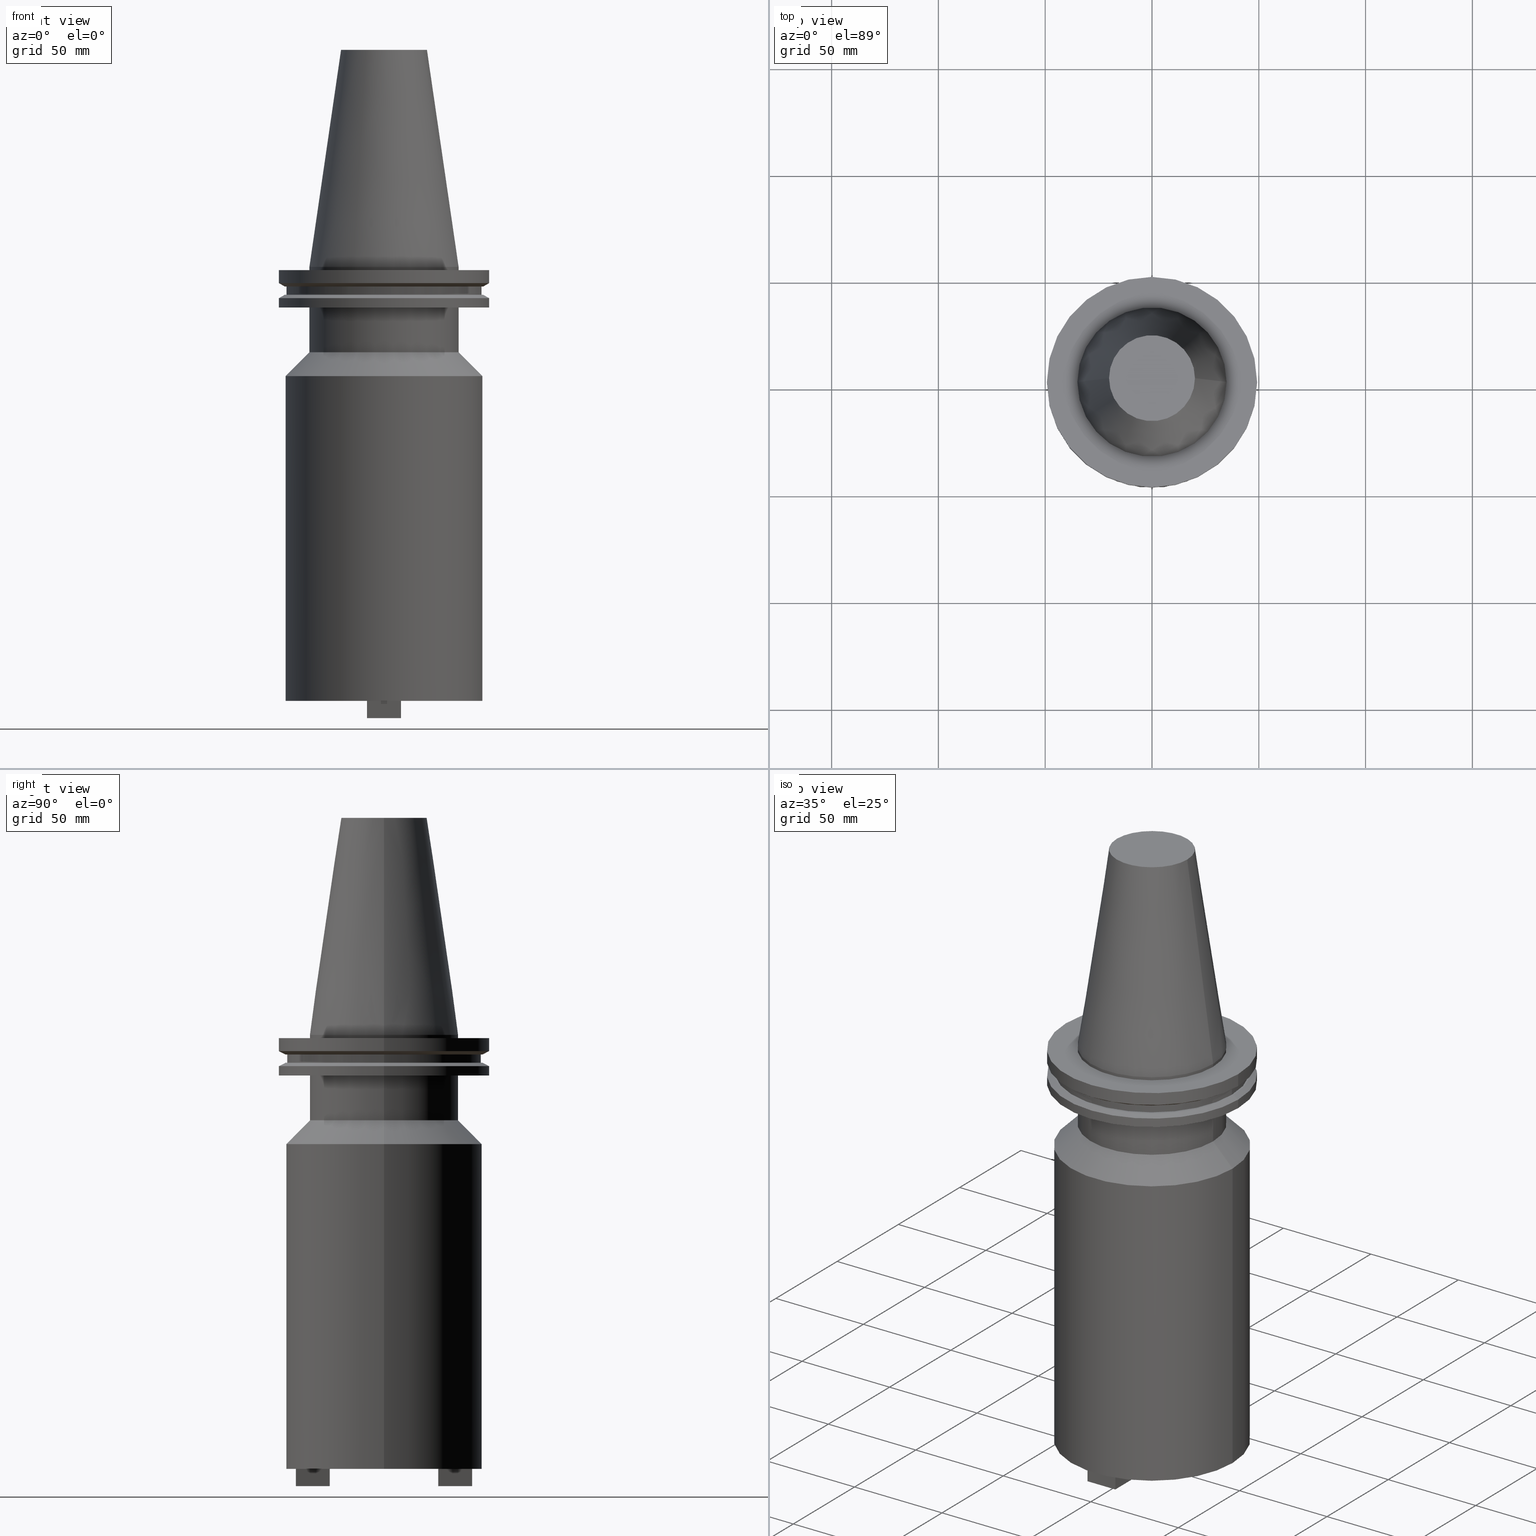
[diagram: canonical four-view strip — front | top / right | iso, engineering-drawing reading convention]
A machine part, canonical four-view strip (front | top / right | iso — engineering-drawing reading convention). The complete STEP part file that produces these views, byte-faithful:
ISO-10303-21;
HEADER;
FILE_DESCRIPTION (( 'STEP AP203' ),
    '1' );
FILE_NAME ('BCV50-SMC1_500-8.stp',
    '2022-03-03T20:18:29',
    ( '' ),
    ( '' ),
    'SwSTEP 2.0',
    'SolidWorks 2021',
    '' );
FILE_SCHEMA (( 'CONFIG_CONTROL_DESIGN' ));
ENDSEC;

DATA;
#1 = AXIS2_PLACEMENT_3D ( 'NONE', #23, #972, #198 ) ;
#2 = CARTESIAN_POINT ( 'NONE',  ( 49.21500000000000341, 0.000000000000000000, -7.602389855251287187 ) ) ;
#3 = VERTEX_POINT ( 'NONE', #93 ) ;
#4 = EDGE_CURVE ( 'NONE', #542, #843, #78, .T. ) ;
#5 = APPLICATION_PROTOCOL_DEFINITION ( 'international standard', 'config_control_design', 1994, #444 ) ;
#6 = FACE_OUTER_BOUND ( 'NONE', #931, .T. ) ;
#7 = APPROVAL ( #183, 'UNSPECIFIED' ) ;
#8 = CARTESIAN_POINT ( 'NONE',  ( 7.939999999999987068, 41.27999999999999403, -211.2800000000000011 ) ) ;
#9 = ORIENTED_EDGE ( 'NONE', *, *, #872, .T. ) ;
#10 = FACE_OUTER_BOUND ( 'NONE', #1051, .T. ) ;
#11 = ORIENTED_EDGE ( 'NONE', *, *, #362, .T. ) ;
#12 = EDGE_LOOP ( 'NONE', ( #492, #1038, #669, #563 ) ) ;
#13 = DIRECTION ( 'NONE',  ( 1.000000000000000000, 0.000000000000000000, 0.000000000000000000 ) ) ;
#14 = VECTOR ( 'NONE', #165, 1000.000000000000000 ) ;
#15 = ADVANCED_FACE ( 'NONE', ( #759, #675 ), #774, .F. ) ;
#16 = CARTESIAN_POINT ( 'NONE',  ( 0.000000000000000000, 0.000000000000000000, -1.499999999999987566 ) ) ;
#17 = CONICAL_SURFACE ( 'NONE', #921, 46.04999999999999716, 0.7853981633974501664 ) ;
#18 = ORIENTED_EDGE ( 'NONE', *, *, #765, .F. ) ;
#19 = AXIS2_PLACEMENT_3D ( 'NONE', #853, #678, #858 ) ;
#20 = CARTESIAN_POINT ( 'NONE',  ( -7.940000000000012825, 8.673617379884053221E-16, -203.1999999999999886 ) ) ;
#21 = CARTESIAN_POINT ( 'NONE',  ( 0.000000000000000000, 0.000000000000000000, 0.000000000000000000 ) ) ;
#22 = CARTESIAN_POINT ( 'NONE',  ( 0.000000000000000000, 0.000000000000000000, -39.99999999999999289 ) ) ;
#23 = CARTESIAN_POINT ( 'NONE',  ( 0.000000000000000000, 20.10819343178871321, 101.5999999999999943 ) ) ;
#24 = VERTEX_POINT ( 'NONE', #949 ) ;
#25 = DIRECTION ( 'NONE',  ( -0.000000000000000000, -0.000000000000000000, 1.000000000000000000 ) ) ;
#26 = DIRECTION ( 'NONE',  ( -1.092395136005546426E-16, -1.000000000000000000, 0.000000000000000000 ) ) ;
#27 = DIRECTION ( 'NONE',  ( -0.000000000000000000, -0.000000000000000000, 1.000000000000000000 ) ) ;
#28 = DIRECTION ( 'NONE',  ( -0.000000000000000000, -0.000000000000000000, 1.000000000000000000 ) ) ;
#29 = VERTEX_POINT ( 'NONE', #428 ) ;
#30 = EDGE_CURVE ( 'NONE', #875, #963, #666, .T. ) ;
#31 = LINE ( 'NONE', #469, #923 ) ;
#32 = PLANE ( 'NONE',  #175 ) ;
#33 = CARTESIAN_POINT ( 'NONE',  ( -46.43919780457007818, 5.857130358318727293E-15, -9.204999999999991189 ) ) ;
#34 = ORIENTED_EDGE ( 'NONE', *, *, #72, .T. ) ;
#35 = AXIS2_PLACEMENT_3D ( 'NONE', #852, #602, #88 ) ;
#36 = ADVANCED_FACE ( 'NONE', ( #1025 ), #1016, .F. ) ;
#37 = CARTESIAN_POINT ( 'NONE',  ( 0.000000000000000000, 0.000000000000000000, -14.65761014474876944 ) ) ;
#38 = DIRECTION ( 'NONE',  ( -0.000000000000000000, -0.000000000000000000, 1.000000000000000000 ) ) ;
#39 = DIRECTION ( 'NONE',  ( -0.000000000000000000, -0.000000000000000000, 1.000000000000000000 ) ) ;
#40 = EDGE_LOOP ( 'NONE', ( #257, #577, #501, #999 ) ) ;
#41 = CARTESIAN_POINT ( 'NONE',  ( 7.939999999999990621, 25.39999999999998792, -211.2800000000000011 ) ) ;
#42 = DIRECTION ( 'NONE',  ( -0.000000000000000000, -0.000000000000000000, 1.000000000000000000 ) ) ;
#43 = ADVANCED_FACE ( 'NONE', ( #595, #1009 ), #935, .F. ) ;
#44 = PLANE ( 'NONE',  #98 ) ;
#45 = EDGE_LOOP ( 'NONE', ( #590, #128 ) ) ;
#46 = DIRECTION ( 'NONE',  ( -0.000000000000000000, -0.000000000000000000, 1.000000000000000000 ) ) ;
#47 = LINE ( 'NONE', #476, #653 ) ;
#48 = EDGE_CURVE ( 'NONE', #485, #489, #768, .T. ) ;
#49 = EDGE_LOOP ( 'NONE', ( #437, #289 ) ) ;
#50 = DESIGN_CONTEXT ( 'detailed design', #1028, 'design' ) ;
#51 = PERSON_AND_ORGANIZATION ( #811, #304 ) ;
#52 = ORIENTED_EDGE ( 'NONE', *, *, #950, .F. ) ;
#53 = VECTOR ( 'NONE', #348, 999.9999999999998863 ) ;
#54 = CARTESIAN_POINT ( 'NONE',  ( 0.000000000000000000, 0.000000000000000000, -203.1999999999999886 ) ) ;
#55 = LINE ( 'NONE', #398, #280 ) ;
#56 = AXIS2_PLACEMENT_3D ( 'NONE', #859, #439, #779 ) ;
#57 = EDGE_LOOP ( 'NONE', ( #922, #1064 ) ) ;
#58 = DIRECTION ( 'NONE',  ( -0.000000000000000000, -0.000000000000000000, 1.000000000000000000 ) ) ;
#59 = EDGE_CURVE ( 'NONE', #843, #29, #1066, .T. ) ;
#60 = EDGE_LOOP ( 'NONE', ( #296, #361, #199, #815 ) ) ;
#61 = ORIENTED_EDGE ( 'NONE', *, *, #953, .T. ) ;
#62 = EDGE_CURVE ( 'NONE', #111, #937, #857, .T. ) ;
#63 = CARTESIAN_POINT ( 'NONE',  ( 8.730000000000009308, 0.000000000000000000, -203.1999999999999886 ) ) ;
#64 = ORIENTED_EDGE ( 'NONE', *, *, #423, .F. ) ;
#65 = EDGE_LOOP ( 'NONE', ( #725, #910, #750, #157 ) ) ;
#66 = AXIS2_PLACEMENT_3D ( 'NONE', #976, #1062, #646 ) ;
#67 = DIRECTION ( 'NONE',  ( -0.000000000000000000, -0.000000000000000000, 1.000000000000000000 ) ) ;
#68 = ORIENTED_EDGE ( 'NONE', *, *, #70, .F. ) ;
#69 = EDGE_CURVE ( 'NONE', #878, #559, #262, .T. ) ;
#70 = EDGE_CURVE ( 'NONE', #1044, #814, #319, .T. ) ;
#71 = FACE_BOUND ( 'NONE', #49, .T. ) ;
#72 = EDGE_CURVE ( 'NONE', #403, #422, #356, .T. ) ;
#73 = CARTESIAN_POINT ( 'NONE',  ( 0.000000000000000000, 45.64500000000000313, -13.05499999999999794 ) ) ;
#74 = LINE ( 'NONE', #416, #226 ) ;
#75 = ORIENTED_EDGE ( 'NONE', *, *, #860, .T. ) ;
#76 = DATE_TIME_ROLE ( 'creation_date' ) ;
#77 = CARTESIAN_POINT ( 'NONE',  ( -49.21499999999999631, 6.027099222003697826E-15, 101.5999999999999943 ) ) ;
#78 = LINE ( 'NONE', #342, #290 ) ;
#79 = ADVANCED_FACE ( 'NONE', ( #710 ), #463, .T. ) ;
#80 = PLANE ( 'NONE',  #153 ) ;
#81 = ORIENTED_EDGE ( 'NONE', *, *, #345, .F. ) ;
#82 = LINE ( 'NONE', #20, #707 ) ;
#83 = CIRCLE ( 'NONE', #191, 8.729999999999998650 ) ;
#84 = DIRECTION ( 'NONE',  ( 1.000000000000000000, 0.000000000000000000, 0.000000000000000000 ) ) ;
#85 = LOCAL_TIME ( 14, 18, 29.00000000000000000, #283 ) ;
#86 = LINE ( 'NONE', #327, #391 ) ;
#87 = ORIENTED_EDGE ( 'NONE', *, *, #504, .F. ) ;
#88 = DIRECTION ( 'NONE',  ( 1.000000000000000000, 0.000000000000000000, 0.000000000000000000 ) ) ;
#89 = CARTESIAN_POINT ( 'NONE',  ( -1.803762848572357623E-14, 41.27999999999998693, -211.2800000000000011 ) ) ;
#90 = DIRECTION ( 'NONE',  ( 1.000000000000000000, 0.000000000000000000, 0.000000000000000000 ) ) ;
#91 = ORIENTED_EDGE ( 'NONE', *, *, #895, .F. ) ;
#92 = DIRECTION ( 'NONE',  ( -1.000000000000000000, 0.000000000000000000, -0.000000000000000000 ) ) ;
#93 = CARTESIAN_POINT ( 'NONE',  ( 34.92499999999999005, 0.000000000000000000, -1.499999999999987566 ) ) ;
#94 = VERTEX_POINT ( 'NONE', #471 ) ;
#95 = PERSON_AND_ORGANIZATION ( #811, #304 ) ;
#96 = DIRECTION ( 'NONE',  ( -1.000000000000000000, 0.000000000000000000, 0.000000000000000000 ) ) ;
#97 = LINE ( 'NONE', #790, #869 ) ;
#98 = AXIS2_PLACEMENT_3D ( 'NONE', #990, #387, #894 ) ;
#99 = EDGE_CURVE ( 'NONE', #203, #1097, #536, .T. ) ;
#100 = DIRECTION ( 'NONE',  ( -0.000000000000000000, -0.000000000000000000, 1.000000000000000000 ) ) ;
#101 = CIRCLE ( 'NONE', #496, 8.729999999999998650 ) ;
#102 = AXIS2_PLACEMENT_3D ( 'NONE', #54, #370, #195 ) ;
#103 = CC_DESIGN_PERSON_AND_ORGANIZATION_ASSIGNMENT ( #363, #291, ( #730 ) ) ;
#104 = ORIENTED_EDGE ( 'NONE', *, *, #957, .F. ) ;
#105 = AXIS2_PLACEMENT_3D ( 'NONE', #113, #285, #358 ) ;
#106 = CIRCLE ( 'NONE', #396, 46.04999999999999716 ) ;
#107 = CARTESIAN_POINT ( 'NONE',  ( -7.940000000000009273, 25.39999999999998792, -203.1999999999999886 ) ) ;
#108 = DIRECTION ( 'NONE',  ( -0.000000000000000000, -0.000000000000000000, 1.000000000000000000 ) ) ;
#109 = LINE ( 'NONE', #158, #14 ) ;
#110 = DIRECTION ( 'NONE',  ( -0.000000000000000000, -0.000000000000000000, 1.000000000000000000 ) ) ;
#111 = VERTEX_POINT ( 'NONE', #33 ) ;
#112 = CARTESIAN_POINT ( 'NONE',  ( 46.04999999999999716, 0.000000000000000000, 0.000000000000000000 ) ) ;
#113 = CARTESIAN_POINT ( 'NONE',  ( 0.000000000000000000, 0.000000000000000000, 0.000000000000000000 ) ) ;
#114 = FACE_OUTER_BOUND ( 'NONE', #40, .T. ) ;
#115 = CARTESIAN_POINT ( 'NONE',  ( -7.940000000000009273, 25.39999999999998792, -211.2800000000000011 ) ) ;
#116 = VERTEX_POINT ( 'NONE', #454 ) ;
#117 = EDGE_CURVE ( 'NONE', #235, #542, #286, .T. ) ;
#118 = CYLINDRICAL_SURFACE ( 'NONE', #906, 45.64500000000000313 ) ;
#119 = FACE_OUTER_BOUND ( 'NONE', #575, .T. ) ;
#120 = CARTESIAN_POINT ( 'NONE',  ( 34.92499999999999716, 0.000000000000000000, 101.5999999999999943 ) ) ;
#121 = ORIENTED_EDGE ( 'NONE', *, *, #548, .F. ) ;
#122 = CONICAL_SURFACE ( 'NONE', #66, 46.04999999999999716, 0.7853981633974501664 ) ;
#123 = ORIENTED_EDGE ( 'NONE', *, *, #1006, .T. ) ;
#124 =( GEOMETRIC_REPRESENTATION_CONTEXT ( 3 ) GLOBAL_UNCERTAINTY_ASSIGNED_CONTEXT ( ( #466 ) ) GLOBAL_UNIT_ASSIGNED_CONTEXT ( ( #781, #502, #772 ) ) REPRESENTATION_CONTEXT ( 'NONE', 'WORKASPACE' ) );
#125 = DIRECTION ( 'NONE',  ( 0.000000000000000000, -0.000000000000000000, 1.000000000000000000 ) ) ;
#126 = DIRECTION ( 'NONE',  ( -0.1443082272672999988, 0.000000000000000000, -0.9895327864921755756 ) ) ;
#127 = DIRECTION ( 'NONE',  ( -0.000000000000000000, -0.000000000000000000, 1.000000000000000000 ) ) ;
#128 = ORIENTED_EDGE ( 'NONE', *, *, #221, .T. ) ;
#129 = PERSON_AND_ORGANIZATION_ROLE ( 'classification_officer' ) ;
#130 = CARTESIAN_POINT ( 'NONE',  ( -7.940000000000009273, -25.39999999999998437, -203.1999999999999886 ) ) ;
#131 = EDGE_CURVE ( 'NONE', #1075, #159, #360, .T. ) ;
#132 = PLANE ( 'NONE',  #619 ) ;
#133 = LINE ( 'NONE', #722, #173 ) ;
#134 = VERTEX_POINT ( 'NONE', #273 ) ;
#135 = CARTESIAN_POINT ( 'NONE',  ( 0.000000000000000000, 0.000000000000000000, 101.5999999999999943 ) ) ;
#136 = DIRECTION ( 'NONE',  ( 1.000000000000000000, 0.000000000000000000, 0.000000000000000000 ) ) ;
#137 = ORIENTED_EDGE ( 'NONE', *, *, #1083, .F. ) ;
#138 = COORDINATED_UNIVERSAL_TIME_OFFSET ( 6, 0, .BEHIND. ) ;
#139 = ORIENTED_EDGE ( 'NONE', *, *, #477, .F. ) ;
#140 = VECTOR ( 'NONE', #988, 1000.000000000000000 ) ;
#141 = DIRECTION ( 'NONE',  ( -0.000000000000000000, -0.000000000000000000, 1.000000000000000000 ) ) ;
#142 = VERTEX_POINT ( 'NONE', #961 ) ;
#143 = AXIS2_PLACEMENT_3D ( 'NONE', #73, #1102, #238 ) ;
#144 = DIRECTION ( 'NONE',  ( -0.000000000000000000, -0.000000000000000000, 1.000000000000000000 ) ) ;
#145 = EDGE_CURVE ( 'NONE', #1075, #648, #1065, .T. ) ;
#146 = ORIENTED_EDGE ( 'NONE', *, *, #1031, .F. ) ;
#147 = DIRECTION ( 'NONE',  ( 1.000000000000000000, 0.000000000000000000, 0.000000000000000000 ) ) ;
#148 = EDGE_CURVE ( 'NONE', #253, #861, #610, .T. ) ;
#149 = ORIENTED_EDGE ( 'NONE', *, *, #504, .T. ) ;
#150 = EDGE_CURVE ( 'NONE', #249, #746, #353, .T. ) ;
#151 = CIRCLE ( 'NONE', #766, 34.92499999999999005 ) ;
#152 = VERTEX_POINT ( 'NONE', #190 ) ;
#153 = AXIS2_PLACEMENT_3D ( 'NONE', #1055, #1026, #278 ) ;
#154 = AXIS2_PLACEMENT_3D ( 'NONE', #239, #583, #924 ) ;
#155 = FACE_OUTER_BOUND ( 'NONE', #368, .T. ) ;
#156 = VECTOR ( 'NONE', #270, 1000.000000000000000 ) ;
#157 = ORIENTED_EDGE ( 'NONE', *, *, #868, .T. ) ;
#158 = CARTESIAN_POINT ( 'NONE',  ( -1.803762848572357623E-14, 41.27999999999998693, -211.2800000000000011 ) ) ;
#159 = VERTEX_POINT ( 'NONE', #367 ) ;
#160 = COORDINATED_UNIVERSAL_TIME_OFFSET ( 6, 0, .BEHIND. ) ;
#161 = AXIS2_PLACEMENT_3D ( 'NONE', #16, #890, #534 ) ;
#162 = CARTESIAN_POINT ( 'NONE',  ( 0.000000000000000000, 0.000000000000000000, -35.00000000000000000 ) ) ;
#163 = EDGE_CURVE ( 'NONE', #3, #635, #335, .T. ) ;
#164 = ORIENTED_EDGE ( 'NONE', *, *, #178, .T. ) ;
#165 = DIRECTION ( 'NONE',  ( -1.000000000000000000, -4.369580544022185705E-16, 0.000000000000000000 ) ) ;
#166 = ORIENTED_EDGE ( 'NONE', *, *, #537, .T. ) ;
#167 = DIRECTION ( 'NONE',  ( -0.000000000000000000, -0.000000000000000000, 1.000000000000000000 ) ) ;
#168 = CARTESIAN_POINT ( 'NONE',  ( 0.000000000000000000, 0.000000000000000000, -203.1999999999999886 ) ) ;
#169 = CARTESIAN_POINT ( 'NONE',  ( 0.000000000000000000, 49.21499999999998920, -19.04999999999999716 ) ) ;
#170 = PLANE ( 'NONE',  #572 ) ;
#171 = ORIENTED_EDGE ( 'NONE', *, *, #933, .F. ) ;
#172 = CARTESIAN_POINT ( 'NONE',  ( 0.000000000000000000, 0.000000000000000000, 0.000000000000000000 ) ) ;
#173 = VECTOR ( 'NONE', #1074, 1000.000000000000000 ) ;
#174 = DIRECTION ( 'NONE',  ( -0.000000000000000000, -0.000000000000000000, 1.000000000000000000 ) ) ;
#175 = AXIS2_PLACEMENT_3D ( 'NONE', #372, #545, #410 ) ;
#176 = DIRECTION ( 'NONE',  ( 1.000000000000000000, 0.000000000000000000, 0.000000000000000000 ) ) ;
#177 = ORIENTED_EDGE ( 'NONE', *, *, #223, .F. ) ;
#178 = EDGE_CURVE ( 'NONE', #814, #1044, #106, .T. ) ;
#179 = PERSON_AND_ORGANIZATION ( #811, #304 ) ;
#180 = DIRECTION ( 'NONE',  ( -1.000000000000000000, -4.369580544022185212E-16, 0.000000000000000000 ) ) ;
#181 = DIRECTION ( 'NONE',  ( -1.000000000000000000, 4.369580544022184719E-16, 0.000000000000000000 ) ) ;
#182 = ORIENTED_EDGE ( 'NONE', *, *, #962, .F. ) ;
#183 = APPROVAL_STATUS ( 'not_yet_approved' ) ;
#184 = FACE_OUTER_BOUND ( 'NONE', #810, .T. ) ;
#185 = CARTESIAN_POINT ( 'NONE',  ( 0.000000000000000000, 0.000000000000000000, -51.12499999999995026 ) ) ;
#186 = EDGE_LOOP ( 'NONE', ( #944, #64, #641, #480 ) ) ;
#187 = EDGE_CURVE ( 'NONE', #24, #814, #955, .T. ) ;
#188 = DIRECTION ( 'NONE',  ( 0.000000000000000000, -0.000000000000000000, 1.000000000000000000 ) ) ;
#189 = CARTESIAN_POINT ( 'NONE',  ( 0.000000000000000000, 0.000000000000000000, -9.204999999999991189 ) ) ;
#190 = CARTESIAN_POINT ( 'NONE',  ( -7.940000000000007496, 41.27999999999998693, -203.1999999999999886 ) ) ;
#191 = AXIS2_PLACEMENT_3D ( 'NONE', #314, #503, #743 ) ;
#192 = CIRCLE ( 'NONE', #686, 46.04999999999999716 ) ;
#193 = ORIENTED_EDGE ( 'NONE', *, *, #594, .T. ) ;
#194 = VECTOR ( 'NONE', #970, 1000.000000000000000 ) ;
#195 = DIRECTION ( 'NONE',  ( 1.000000000000000000, 0.000000000000000000, 0.000000000000000000 ) ) ;
#196 = ADVANCED_FACE ( 'NONE', ( #279 ), #787, .F. ) ;
#197 = FACE_BOUND ( 'NONE', #661, .T. ) ;
#198 = DIRECTION ( 'NONE',  ( -1.000000000000000000, 0.000000000000000000, -0.000000000000000000 ) ) ;
#199 = ORIENTED_EDGE ( 'NONE', *, *, #72, .F. ) ;
#200 = DIRECTION ( 'NONE',  ( 1.000000000000000000, 0.000000000000000000, 0.000000000000000000 ) ) ;
#201 = LINE ( 'NONE', #311, #964 ) ;
#202 = DIRECTION ( 'NONE',  ( -0.000000000000000000, -0.000000000000000000, 1.000000000000000000 ) ) ;
#203 = VERTEX_POINT ( 'NONE', #540 ) ;
#204 = FACE_OUTER_BOUND ( 'NONE', #916, .T. ) ;
#205 = CYLINDRICAL_SURFACE ( 'NONE', #667, 34.92499999999999005 ) ;
#206 = DIRECTION ( 'NONE',  ( -0.000000000000000000, -0.000000000000000000, 1.000000000000000000 ) ) ;
#207 = AXIS2_PLACEMENT_3D ( 'NONE', #22, #676, #359 ) ;
#208 = ORIENTED_EDGE ( 'NONE', *, *, #919, .F. ) ;
#209 = AXIS2_PLACEMENT_3D ( 'NONE', #593, #665, #413 ) ;
#210 = ADVANCED_FACE ( 'NONE', ( #798 ), #716, .T. ) ;
#211 = ORIENTED_EDGE ( 'NONE', *, *, #837, .T. ) ;
#212 = CIRCLE ( 'NONE', #102, 8.730000000000009308 ) ;
#213 = FACE_OUTER_BOUND ( 'NONE', #220, .T. ) ;
#214 = DIRECTION ( 'NONE',  ( -1.000000000000000000, 0.000000000000000000, -0.000000000000000000 ) ) ;
#215 = FACE_OUTER_BOUND ( 'NONE', #186, .T. ) ;
#216 = CARTESIAN_POINT ( 'NONE',  ( 7.939999999999999503, -1.734723475976807094E-15, -211.2800000000000011 ) ) ;
#217 = CARTESIAN_POINT ( 'NONE',  ( -7.940000000000009273, -41.27999999999998693, -211.2800000000000011 ) ) ;
#218 = CC_DESIGN_DATE_AND_TIME_ASSIGNMENT ( #1082, #994, ( #908 ) ) ;
#219 = ORIENTED_EDGE ( 'NONE', *, *, #548, .T. ) ;
#220 = EDGE_LOOP ( 'NONE', ( #535, #18, #771, #775 ) ) ;
#221 = EDGE_CURVE ( 'NONE', #249, #691, #246, .T. ) ;
#222 = DIRECTION ( 'NONE',  ( -0.000000000000000000, -0.000000000000000000, 1.000000000000000000 ) ) ;
#223 = EDGE_CURVE ( 'NONE', #142, #473, #882, .T. ) ;
#224 = ORIENTED_EDGE ( 'NONE', *, *, #823, .T. ) ;
#225 = EDGE_LOOP ( 'NONE', ( #307, #1004, #519, #1076 ) ) ;
#226 = VECTOR ( 'NONE', #936, 1000.000000000000000 ) ;
#227 = CIRCLE ( 'NONE', #352, 49.21499999999998920 ) ;
#228 = DIRECTION ( 'NONE',  ( 1.000000000000000000, 0.000000000000000000, 0.000000000000000000 ) ) ;
#229 = ADVANCED_FACE ( 'NONE', ( #803 ), #381, .T. ) ;
#230 = ORIENTED_EDGE ( 'NONE', *, *, #131, .T. ) ;
#231 = AXIS2_PLACEMENT_3D ( 'NONE', #865, #526, #874 ) ;
#232 = ORIENTED_EDGE ( 'NONE', *, *, #345, .T. ) ;
#233 = PRODUCT_RELATED_PRODUCT_CATEGORY ( 'detail', '', ( #903 ) ) ;
#234 = DIRECTION ( 'NONE',  ( 0.000000000000000000, 1.000000000000000000, 0.000000000000000000 ) ) ;
#235 = VERTEX_POINT ( 'NONE', #983 ) ;
#236 = ORIENTED_EDGE ( 'NONE', *, *, #627, .F. ) ;
#237 = DIRECTION ( 'NONE',  ( 1.000000000000000000, 0.000000000000000000, 0.000000000000000000 ) ) ;
#238 = DIRECTION ( 'NONE',  ( -1.000000000000000000, 0.000000000000000000, -0.000000000000000000 ) ) ;
#239 = CARTESIAN_POINT ( 'NONE',  ( 0.000000000000000000, 0.000000000000000000, -14.65761014474876944 ) ) ;
#240 = VERTEX_POINT ( 'NONE', #562 ) ;
#241 = EDGE_CURVE ( 'NONE', #878, #875, #133, .T. ) ;
#242 = PERSON_AND_ORGANIZATION ( #811, #304 ) ;
#243 = CIRCLE ( 'NONE', #1014, 45.64500000000000313 ) ;
#244 = VECTOR ( 'NONE', #26, 1000.000000000000000 ) ;
#245 = CARTESIAN_POINT ( 'NONE',  ( -8.729999999999998650, 1.069116655655639177E-15, -35.00000000000000000 ) ) ;
#246 = CIRCLE ( 'NONE', #909, 8.730000000000009308 ) ;
#247 = ORIENTED_EDGE ( 'NONE', *, *, #697, .F. ) ;
#248 = FACE_OUTER_BOUND ( 'NONE', #376, .T. ) ;
#249 = VERTEX_POINT ( 'NONE', #299 ) ;
#250 = FACE_OUTER_BOUND ( 'NONE', #732, .T. ) ;
#251 = CARTESIAN_POINT ( 'NONE',  ( 0.000000000000000000, 0.000000000000000000, 0.000000000000000000 ) ) ;
#252 = FACE_OUTER_BOUND ( 'NONE', #513, .T. ) ;
#253 = VERTEX_POINT ( 'NONE', #638 ) ;
#254 = LINE ( 'NONE', #938, #966 ) ;
#255 = DIRECTION ( 'NONE',  ( 0.000000000000000000, 0.000000000000000000, -1.000000000000000000 ) ) ;
#256 = CARTESIAN_POINT ( 'NONE',  ( 0.000000000000000000, 0.000000000000000000, 0.000000000000000000 ) ) ;
#257 = ORIENTED_EDGE ( 'NONE', *, *, #1015, .F. ) ;
#258 = PERSON_AND_ORGANIZATION ( #811, #304 ) ;
#259 = DIRECTION ( 'NONE',  ( -0.000000000000000000, -0.000000000000000000, 1.000000000000000000 ) ) ;
#260 = VECTOR ( 'NONE', #419, 1000.000000000000000 ) ;
#261 = AXIS2_PLACEMENT_3D ( 'NONE', #305, #46, #817 ) ;
#262 = LINE ( 'NONE', #604, #808 ) ;
#263 = ORIENTED_EDGE ( 'NONE', *, *, #150, .T. ) ;
#264 = APPROVAL_DATE_TIME ( #1012, #7 ) ;
#265 = CARTESIAN_POINT ( 'NONE',  ( -1.109873458181633997E-14, -25.39999999999998792, -203.1999999999999886 ) ) ;
#266 = LINE ( 'NONE', #452, #244 ) ;
#267 = DIRECTION ( 'NONE',  ( -0.000000000000000000, -0.000000000000000000, 1.000000000000000000 ) ) ;
#268 = ADVANCED_FACE ( 'NONE', ( #215 ), #44, .T. ) ;
#269 = ORIENTED_EDGE ( 'NONE', *, *, #187, .F. ) ;
#270 = DIRECTION ( 'NONE',  ( -0.000000000000000000, -0.000000000000000000, 1.000000000000000000 ) ) ;
#271 = FACE_OUTER_BOUND ( 'NONE', #412, .T. ) ;
#272 = DIRECTION ( 'NONE',  ( -0.000000000000000000, -0.000000000000000000, 1.000000000000000000 ) ) ;
#273 = CARTESIAN_POINT ( 'NONE',  ( -7.940000000000007496, 41.27999999999998693, -211.2800000000000011 ) ) ;
#274 = ORIENTED_EDGE ( 'NONE', *, *, #941, .F. ) ;
#275 = ORIENTED_EDGE ( 'NONE', *, *, #837, .F. ) ;
#276 = ADVANCED_FACE ( 'NONE', ( #478 ), #873, .T. ) ;
#277 = DIRECTION ( 'NONE',  ( 1.000000000000000000, 0.000000000000000000, 0.000000000000000000 ) ) ;
#278 = DIRECTION ( 'NONE',  ( -1.000000000000000000, 4.369580544022184226E-16, 0.000000000000000000 ) ) ;
#279 = FACE_OUTER_BOUND ( 'NONE', #407, .T. ) ;
#280 = VECTOR ( 'NONE', #735, 1000.000000000000000 ) ;
#281 = VECTOR ( 'NONE', #1061, 999.9999999999998863 ) ;
#282 = EDGE_LOOP ( 'NONE', ( #658, #1100 ) ) ;
#283 = COORDINATED_UNIVERSAL_TIME_OFFSET ( 6, 0, .BEHIND. ) ;
#284 = DIRECTION ( 'NONE',  ( -0.000000000000000000, -0.000000000000000000, 1.000000000000000000 ) ) ;
#285 = DIRECTION ( 'NONE',  ( -0.000000000000000000, -0.000000000000000000, 1.000000000000000000 ) ) ;
#286 = CIRCLE ( 'NONE', #911, 20.10819343178871321 ) ;
#287 = LINE ( 'NONE', #807, #886 ) ;
#288 = DIRECTION ( 'NONE',  ( 1.000000000000000000, 0.000000000000000000, 0.000000000000000000 ) ) ;
#289 = ORIENTED_EDGE ( 'NONE', *, *, #349, .T. ) ;
#290 = VECTOR ( 'NONE', #510, 999.9999999999998863 ) ;
#291 = PERSON_AND_ORGANIZATION_ROLE ( 'creator' ) ;
#292 = LINE ( 'NONE', #636, #375 ) ;
#293 = LINE ( 'NONE', #1068, #140 ) ;
#294 = DIRECTION ( 'NONE',  ( -0.000000000000000000, -0.000000000000000000, 1.000000000000000000 ) ) ;
#295 = EDGE_CURVE ( 'NONE', #142, #914, #551, .T. ) ;
#296 = ORIENTED_EDGE ( 'NONE', *, *, #1031, .T. ) ;
#297 = CARTESIAN_POINT ( 'NONE',  ( 7.939999999999995950, 1.734723475976805714E-15, -211.2800000000000011 ) ) ;
#298 = FACE_OUTER_BOUND ( 'NONE', #326, .T. ) ;
#299 = CARTESIAN_POINT ( 'NONE',  ( -8.730000000000009308, 1.069116655655640360E-15, -203.1999999999999886 ) ) ;
#300 = ORIENTED_EDGE ( 'NONE', *, *, #1058, .T. ) ;
#301 = AXIS2_PLACEMENT_3D ( 'NONE', #552, #38, #897 ) ;
#302 = VERTEX_POINT ( 'NONE', #694 ) ;
#303 = CIRCLE ( 'NONE', #464, 46.43919780457007818 ) ;
#304 = ORGANIZATION ( 'UNSPECIFIED', 'UNSPECIFIED', '' ) ;
#305 = CARTESIAN_POINT ( 'NONE',  ( 0.000000000000000000, 0.000000000000000000, 101.5999999999999943 ) ) ;
#306 = CARTESIAN_POINT ( 'NONE',  ( 0.000000000000000000, 0.000000000000000000, -203.1999999999999886 ) ) ;
#307 = ORIENTED_EDGE ( 'NONE', *, *, #415, .T. ) ;
#308 = ORIENTED_EDGE ( 'NONE', *, *, #70, .T. ) ;
#309 = AXIS2_PLACEMENT_3D ( 'NONE', #251, #1036, #940 ) ;
#310 = CARTESIAN_POINT ( 'NONE',  ( -34.92499999999999716, 4.277078946022130887E-15, -39.99999999999999289 ) ) ;
#311 = CARTESIAN_POINT ( 'NONE',  ( -49.21499999999998920, 0.000000000000000000, -14.65761014474876944 ) ) ;
#312 = ORIENTED_EDGE ( 'NONE', *, *, #1045, .F. ) ;
#313 = EDGE_CURVE ( 'NONE', #485, #134, #109, .T. ) ;
#314 = CARTESIAN_POINT ( 'NONE',  ( 0.000000000000000000, 0.000000000000000000, -35.00000000000000000 ) ) ;
#315 = ORIENTED_EDGE ( 'NONE', *, *, #30, .F. ) ;
#316 = AXIS2_PLACEMENT_3D ( 'NONE', #773, #517, #13 ) ;
#317 = APPROVAL_PERSON_ORGANIZATION ( #242, #7, #586 ) ;
#318 = CARTESIAN_POINT ( 'NONE',  ( 7.939999999999995950, 1.734723475976805714E-15, -203.1999999999999886 ) ) ;
#319 = CIRCLE ( 'NONE', #56, 46.04999999999999716 ) ;
#320 = ORIENTED_EDGE ( 'NONE', *, *, #163, .F. ) ;
#321 = CARTESIAN_POINT ( 'NONE',  ( 0.000000000000000000, 0.000000000000000000, -9.204999999999991189 ) ) ;
#322 = ADVANCED_FACE ( 'NONE', ( #844 ), #80, .F. ) ;
#323 = CARTESIAN_POINT ( 'NONE',  ( 8.729999999999998650, 0.000000000000000000, 0.000000000000000000 ) ) ;
#324 = EDGE_LOOP ( 'NONE', ( #683, #52, #929, #631 ) ) ;
#325 = PLANE ( 'NONE',  #209 ) ;
#326 = EDGE_LOOP ( 'NONE', ( #315, #647, #1095, #1020 ) ) ;
#327 = CARTESIAN_POINT ( 'NONE',  ( -7.940000000000007496, 41.27999999999998693, -211.2800000000000011 ) ) ;
#328 = ORIENTED_EDGE ( 'NONE', *, *, #178, .F. ) ;
#329 = CARTESIAN_POINT ( 'NONE',  ( 0.000000000000000000, 0.000000000000000000, -19.04999999999999716 ) ) ;
#330 = CIRCLE ( 'NONE', #425, 49.21500000000000341 ) ;
#331 = VECTOR ( 'NONE', #96, 1000.000000000000000 ) ;
#332 = PRODUCT_DEFINITION ( 'UNKNOWN', '', #730, #50 ) ;
#333 = CARTESIAN_POINT ( 'NONE',  ( 49.21499999999998920, 0.000000000000000000, -14.65761014474876944 ) ) ;
#334 = AXIS2_PLACEMENT_3D ( 'NONE', #172, #776, #514 ) ;
#335 = CIRCLE ( 'NONE', #588, 34.92499999999999005 ) ;
#336 = DIRECTION ( 'NONE',  ( -1.000000000000000000, 4.369580544022182747E-16, 0.000000000000000000 ) ) ;
#337 = CARTESIAN_POINT ( 'NONE',  ( 49.21499999999999631, 0.000000000000000000, -1.499999999999987566 ) ) ;
#338 = VERTEX_POINT ( 'NONE', #500 ) ;
#339 = PERSON_AND_ORGANIZATION_ROLE ( 'design_owner' ) ;
#340 = EDGE_CURVE ( 'NONE', #559, #394, #539, .T. ) ;
#341 = PLANE ( 'NONE',  #486 ) ;
#342 = CARTESIAN_POINT ( 'NONE',  ( 34.92499999999999005, 4.277078946022130098E-15, 0.000000000000000000 ) ) ;
#343 = ORIENTED_EDGE ( 'NONE', *, *, #736, .F. ) ;
#344 = LINE ( 'NONE', #1041, #639 ) ;
#345 = EDGE_CURVE ( 'NONE', #635, #3, #151, .T. ) ;
#346 = ORIENTED_EDGE ( 'NONE', *, *, #1070, .F. ) ;
#347 = VERTEX_POINT ( 'NONE', #662 ) ;
#348 = DIRECTION ( 'NONE',  ( -0.7071067811865489050, 0.000000000000000000, -0.7071067811865462405 ) ) ;
#349 = EDGE_CURVE ( 'NONE', #347, #159, #1018, .T. ) ;
#350 = DIRECTION ( 'NONE',  ( 1.000000000000000000, 0.000000000000000000, 0.000000000000000000 ) ) ;
#351 = VECTOR ( 'NONE', #58, 1000.000000000000000 ) ;
#352 = AXIS2_PLACEMENT_3D ( 'NONE', #509, #692, #277 ) ;
#353 = LINE ( 'NONE', #624, #1003 ) ;
#354 = LOCAL_TIME ( 14, 18, 29.00000000000000000, #607 ) ;
#355 = ORIENTED_EDGE ( 'NONE', *, *, #362, .F. ) ;
#356 = CIRCLE ( 'NONE', #161, 49.21499999999999631 ) ;
#357 = CARTESIAN_POINT ( 'NONE',  ( 7.939999999999994174, -25.39999999999999147, -211.2800000000000011 ) ) ;
#358 = DIRECTION ( 'NONE',  ( 1.000000000000000000, 0.000000000000000000, 0.000000000000000000 ) ) ;
#359 = DIRECTION ( 'NONE',  ( 1.000000000000000000, 0.000000000000000000, 0.000000000000000000 ) ) ;
#360 = LINE ( 'NONE', #809, #432 ) ;
#361 = ORIENTED_EDGE ( 'NONE', *, *, #643, .T. ) ;
#362 = EDGE_CURVE ( 'NONE', #914, #611, #849, .T. ) ;
#363 = PERSON_AND_ORGANIZATION ( #811, #304 ) ;
#364 = DIRECTION ( 'NONE',  ( 1.000000000000000000, 0.000000000000000000, 0.000000000000000000 ) ) ;
#365 = DIRECTION ( 'NONE',  ( 1.000000000000000000, 0.000000000000000000, 0.000000000000000000 ) ) ;
#366 = EDGE_CURVE ( 'NONE', #485, #973, #614, .T. ) ;
#367 = CARTESIAN_POINT ( 'NONE',  ( 45.64500000000000313, 0.000000000000000000, -9.204999999999991189 ) ) ;
#368 = EDGE_LOOP ( 'NONE', ( #343, #827 ) ) ;
#369 = ADVANCED_FACE ( 'NONE', ( #197, #839 ), #170, .F. ) ;
#370 = DIRECTION ( 'NONE',  ( -0.000000000000000000, -0.000000000000000000, 1.000000000000000000 ) ) ;
#371 = FACE_OUTER_BOUND ( 'NONE', #324, .T. ) ;
#372 = CARTESIAN_POINT ( 'NONE',  ( -7.940000000000009273, 0.000000000000000000, -211.2800000000000011 ) ) ;
#373 = DIRECTION ( 'NONE',  ( 1.000000000000000000, 0.000000000000000000, 0.000000000000000000 ) ) ;
#374 = AXIS2_PLACEMENT_3D ( 'NONE', #982, #470, #561 ) ;
#375 = VECTOR ( 'NONE', #284, 1000.000000000000000 ) ;
#376 = EDGE_LOOP ( 'NONE', ( #605, #724, #1084, #87 ) ) ;
#377 = AXIS2_PLACEMENT_3D ( 'NONE', #189, #1049, #699 ) ;
#378 = DIRECTION ( 'NONE',  ( -0.000000000000000000, -0.000000000000000000, 1.000000000000000000 ) ) ;
#379 = ADVANCED_FACE ( 'NONE', ( #114 ), #553, .T. ) ;
#380 = DIRECTION ( 'NONE',  ( -0.000000000000000000, -0.000000000000000000, 1.000000000000000000 ) ) ;
#381 = CYLINDRICAL_SURFACE ( 'NONE', #902, 34.92499999999999716 ) ;
#382 = EDGE_LOOP ( 'NONE', ( #121, #465 ) ) ;
#383 = AXIS2_PLACEMENT_3D ( 'NONE', #518, #854, #90 ) ;
#384 = PERSON_AND_ORGANIZATION_ROLE ( 'design_supplier' ) ;
#385 = DIRECTION ( 'NONE',  ( 0.000000000000000000, 0.000000000000000000, -1.000000000000000000 ) ) ;
#386 = DIRECTION ( 'NONE',  ( -1.000000000000000000, 0.000000000000000000, 0.000000000000000000 ) ) ;
#387 = DIRECTION ( 'NONE',  ( -1.000000000000000000, 1.092395136005546303E-16, 0.000000000000000000 ) ) ;
#388 = ORIENTED_EDGE ( 'NONE', *, *, #349, .F. ) ;
#389 = FACE_OUTER_BOUND ( 'NONE', #65, .T. ) ;
#390 = CARTESIAN_POINT ( 'NONE',  ( 0.000000000000000000, 0.000000000000000000, 101.5999999999999943 ) ) ;
#391 = VECTOR ( 'NONE', #1019, 1000.000000000000000 ) ;
#392 = CIRCLE ( 'NONE', #784, 34.92499999999999716 ) ;
#393 = SHAPE_DEFINITION_REPRESENTATION ( #649, #468 ) ;
#394 = VERTEX_POINT ( 'NONE', #761 ) ;
#395 = VECTOR ( 'NONE', #272, 1000.000000000000000 ) ;
#396 = AXIS2_PLACEMENT_3D ( 'NONE', #185, #267, #373 ) ;
#397 = FACE_OUTER_BOUND ( 'NONE', #995, .T. ) ;
#398 = CARTESIAN_POINT ( 'NONE',  ( 34.92499999999999005, 0.000000000000000000, 101.5999999999999943 ) ) ;
#399 = CALENDAR_DATE ( 2022, 3, 3 ) ;
#400 = EDGE_CURVE ( 'NONE', #691, #116, #755, .T. ) ;
#401 = VERTEX_POINT ( 'NONE', #2 ) ;
#402 = CARTESIAN_POINT ( 'NONE',  ( 0.000000000000000000, 0.000000000000000000, -39.99999999999999289 ) ) ;
#403 = VERTEX_POINT ( 'NONE', #337 ) ;
#404 = ORIENTED_EDGE ( 'NONE', *, *, #868, .F. ) ;
#405 = CARTESIAN_POINT ( 'NONE',  ( -45.64500000000000313, 5.589900314708094957E-15, -13.05499999999999794 ) ) ;
#406 = ORIENTED_EDGE ( 'NONE', *, *, #627, .T. ) ;
#407 = EDGE_LOOP ( 'NONE', ( #850, #845 ) ) ;
#408 = AXIS2_PLACEMENT_3D ( 'NONE', #1024, #67, #842 ) ;
#409 = CIRCLE ( 'NONE', #987, 46.43919780457007818 ) ;
#410 = DIRECTION ( 'NONE',  ( 0.000000000000000000, 0.000000000000000000, -1.000000000000000000 ) ) ;
#411 = ADVANCED_FACE ( 'NONE', ( #252 ), #727, .T. ) ;
#412 = EDGE_LOOP ( 'NONE', ( #219, #494, #68, #682 ) ) ;
#413 = DIRECTION ( 'NONE',  ( 1.000000000000000000, 0.000000000000000000, 0.000000000000000000 ) ) ;
#414 = VERTEX_POINT ( 'NONE', #596 ) ;
#415 = EDGE_CURVE ( 'NONE', #489, #152, #74, .T. ) ;
#416 = CARTESIAN_POINT ( 'NONE',  ( -1.803762848572357623E-14, 41.27999999999998693, -203.1999999999999886 ) ) ;
#417 = ORIENTED_EDGE ( 'NONE', *, *, #99, .T. ) ;
#418 = CALENDAR_DATE ( 2022, 3, 3 ) ;
#419 = DIRECTION ( 'NONE',  ( 2.184790272011091620E-16, -1.000000000000000000, 0.000000000000000000 ) ) ;
#420 = ORIENTED_EDGE ( 'NONE', *, *, #295, .T. ) ;
#421 = CARTESIAN_POINT ( 'NONE',  ( 7.939999999999995950, 1.734723475976805714E-15, -211.2800000000000011 ) ) ;
#422 = VERTEX_POINT ( 'NONE', #668 ) ;
#423 = EDGE_CURVE ( 'NONE', #134, #152, #86, .T. ) ;
#424 = LINE ( 'NONE', #598, #53 ) ;
#425 = AXIS2_PLACEMENT_3D ( 'NONE', #714, #893, #1073 ) ;
#426 = VECTOR ( 'NONE', #981, 1000.000000000000000 ) ;
#427 = DIRECTION ( 'NONE',  ( -0.000000000000000000, -0.000000000000000000, 1.000000000000000000 ) ) ;
#428 = CARTESIAN_POINT ( 'NONE',  ( -34.92499999999999005, 0.000000000000000000, 0.000000000000000000 ) ) ;
#429 = DIRECTION ( 'NONE',  ( -1.000000000000000000, 4.369580544022182254E-16, 0.000000000000000000 ) ) ;
#430 = EDGE_LOOP ( 'NONE', ( #884, #840, #149, #123 ) ) ;
#431 = ADVANCED_FACE ( 'NONE', ( #248 ), #867, .T. ) ;
#432 = VECTOR ( 'NONE', #615, 1000.000000000000000 ) ;
#433 = CARTESIAN_POINT ( 'NONE',  ( -46.04999999999999716, 0.000000000000000000, -51.12499999999995026 ) ) ;
#434 = VECTOR ( 'NONE', #336, 1000.000000000000000 ) ;
#435 = APPROVAL ( #900, 'UNSPECIFIED' ) ;
#436 = EDGE_LOOP ( 'NONE', ( #104, #247, #490, #164 ) ) ;
#437 = ORIENTED_EDGE ( 'NONE', *, *, #621, .T. ) ;
#438 = DIRECTION ( 'NONE',  ( -0.000000000000000000, -0.000000000000000000, 1.000000000000000000 ) ) ;
#439 = DIRECTION ( 'NONE',  ( -0.000000000000000000, -0.000000000000000000, 1.000000000000000000 ) ) ;
#440 = EDGE_LOOP ( 'NONE', ( #355, #762, #951, #91 ) ) ;
#441 = APPROVAL_STATUS ( 'not_yet_approved' ) ;
#442 = AXIS2_PLACEMENT_3D ( 'NONE', #573, #1008, #237 ) ;
#443 = CARTESIAN_POINT ( 'NONE',  ( 0.000000000000000000, 25.39999999999998792, -211.2800000000000011 ) ) ;
#444 = APPLICATION_CONTEXT ( 'configuration controlled 3d designs of mechanical parts and assemblies' ) ;
#445 = CIRCLE ( 'NONE', #1077, 49.21499999999998920 ) ;
#446 = ADVANCED_FACE ( 'NONE', ( #119 ), #721, .T. ) ;
#447 = VECTOR ( 'NONE', #705, 1000.000000000000000 ) ;
#448 = CARTESIAN_POINT ( 'NONE',  ( -46.04999999999999716, 5.639498510073560988E-15, 0.000000000000000000 ) ) ;
#449 = LOCAL_TIME ( 14, 18, 29.00000000000000000, #160 ) ;
#450 = ORIENTED_EDGE ( 'NONE', *, *, #659, .F. ) ;
#451 = CARTESIAN_POINT ( 'NONE',  ( 7.939999999999994174, -25.39999999999999147, -211.2800000000000011 ) ) ;
#452 = CARTESIAN_POINT ( 'NONE',  ( -7.940000000000012825, 8.673617379884053221E-16, -211.2800000000000011 ) ) ;
#453 = CARTESIAN_POINT ( 'NONE',  ( -7.940000000000009273, -41.27999999999998693, -211.2800000000000011 ) ) ;
#454 = CARTESIAN_POINT ( 'NONE',  ( 8.729999999999998650, 0.000000000000000000, -35.00000000000000000 ) ) ;
#455 = ORIENTED_EDGE ( 'NONE', *, *, #340, .T. ) ;
#456 = DIRECTION ( 'NONE',  ( -1.000000000000000000, 0.000000000000000000, 0.000000000000000000 ) ) ;
#457 = CARTESIAN_POINT ( 'NONE',  ( 0.000000000000000000, 0.000000000000000000, -9.204999999999991189 ) ) ;
#458 = DIRECTION ( 'NONE',  ( -0.000000000000000000, -0.000000000000000000, 1.000000000000000000 ) ) ;
#459 = ORIENTED_EDGE ( 'NONE', *, *, #1105, .F. ) ;
#460 = CARTESIAN_POINT ( 'NONE',  ( 0.000000000000000000, 0.000000000000000000, -13.05499999999999794 ) ) ;
#461 = CARTESIAN_POINT ( 'NONE',  ( 46.04999999999999716, 5.639498510073560988E-15, -51.12499999999995026 ) ) ;
#462 = CARTESIAN_POINT ( 'NONE',  ( -49.21500000000000341, 6.027099222003699404E-15, -7.602389855251287187 ) ) ;
#463 = CYLINDRICAL_SURFACE ( 'NONE', #734, 45.64500000000000313 ) ;
#464 = AXIS2_PLACEMENT_3D ( 'NONE', #789, #25, #364 ) ;
#465 = ORIENTED_EDGE ( 'NONE', *, *, #823, .F. ) ;
#466 = UNCERTAINTY_MEASURE_WITH_UNIT (LENGTH_MEASURE( 1.000000000000000082E-05 ), #781, 'distance_accuracy_value', 'NONE');
#467 = VERTEX_POINT ( 'NONE', #819 ) ;
#468 = ADVANCED_BREP_SHAPE_REPRESENTATION ( 'BCV50-SMC1_500-8', ( #1079, #334 ), #124 ) ;
#469 = CARTESIAN_POINT ( 'NONE',  ( -1.803762848572357308E-14, -41.27999999999998693, -203.1999999999999886 ) ) ;
#470 = DIRECTION ( 'NONE',  ( -0.000000000000000000, -0.000000000000000000, 1.000000000000000000 ) ) ;
#471 = CARTESIAN_POINT ( 'NONE',  ( 7.939999999999994174, -25.39999999999999147, -203.1999999999999886 ) ) ;
#472 = CC_DESIGN_DATE_AND_TIME_ASSIGNMENT ( #952, #76, ( #332 ) ) ;
#473 = VERTEX_POINT ( 'NONE', #1086 ) ;
#474 = ADVANCED_FACE ( 'NONE', ( #482 ), #205, .T. ) ;
#475 = CYLINDRICAL_SURFACE ( 'NONE', #261, 49.21499999999998920 ) ;
#476 = CARTESIAN_POINT ( 'NONE',  ( 7.939999999999990621, -41.27999999999999403, -211.2800000000000011 ) ) ;
#477 = EDGE_CURVE ( 'NONE', #937, #401, #293, .T. ) ;
#478 = FACE_OUTER_BOUND ( 'NONE', #753, .T. ) ;
#479 = AXIS2_PLACEMENT_3D ( 'NONE', #457, #512, #1099 ) ;
#480 = ORIENTED_EDGE ( 'NONE', *, *, #148, .T. ) ;
#481 = DIRECTION ( 'NONE',  ( 2.184790272011092113E-16, 1.000000000000000000, 0.000000000000000000 ) ) ;
#482 = FACE_OUTER_BOUND ( 'NONE', #592, .T. ) ;
#483 = EDGE_CURVE ( 'NONE', #495, #401, #330, .T. ) ;
#484 = VECTOR ( 'NONE', #1005, 1000.000000000000000 ) ;
#485 = VERTEX_POINT ( 'NONE', #881 ) ;
#486 = AXIS2_PLACEMENT_3D ( 'NONE', #443, #525, #188 ) ;
#487 = ORIENTED_EDGE ( 'NONE', *, *, #579, .F. ) ;
#488 = CARTESIAN_POINT ( 'NONE',  ( -34.92499999999999716, 4.277078946022130887E-15, -19.04999999999999716 ) ) ;
#489 = VERTEX_POINT ( 'NONE', #797 ) ;
#490 = ORIENTED_EDGE ( 'NONE', *, *, #1083, .T. ) ;
#491 = CARTESIAN_POINT ( 'NONE',  ( 0.000000000000000000, 0.000000000000000000, 0.000000000000000000 ) ) ;
#492 = ORIENTED_EDGE ( 'NONE', *, *, #919, .T. ) ;
#493 = LINE ( 'NONE', #318, #260 ) ;
#494 = ORIENTED_EDGE ( 'NONE', *, *, #187, .T. ) ;
#495 = VERTEX_POINT ( 'NONE', #462 ) ;
#496 = AXIS2_PLACEMENT_3D ( 'NONE', #162, #174, #603 ) ;
#497 = AXIS2_PLACEMENT_3D ( 'NONE', #135, #645, #805 ) ;
#498 = DIRECTION ( 'NONE',  ( -1.000000000000000000, 0.000000000000000000, 0.000000000000000000 ) ) ;
#499 = ORIENTED_EDGE ( 'NONE', *, *, #621, .F. ) ;
#500 = CARTESIAN_POINT ( 'NONE',  ( 46.04999999999999716, 0.000000000000000000, -203.1999999999999886 ) ) ;
#501 = ORIENTED_EDGE ( 'NONE', *, *, #477, .T. ) ;
#502 =( NAMED_UNIT ( * ) PLANE_ANGLE_UNIT ( ) SI_UNIT ( $, .RADIAN. ) );
#503 = DIRECTION ( 'NONE',  ( -0.000000000000000000, -0.000000000000000000, 1.000000000000000000 ) ) ;
#504 = EDGE_CURVE ( 'NONE', #235, #29, #802, .T. ) ;
#505 = ORIENTED_EDGE ( 'NONE', *, *, #1015, .T. ) ;
#506 = CARTESIAN_POINT ( 'NONE',  ( 0.000000000000000000, 0.000000000000000000, -1.499999999999987566 ) ) ;
#507 = ORIENTED_EDGE ( 'NONE', *, *, #145, .T. ) ;
#508 = FACE_BOUND ( 'NONE', #1032, .T. ) ;
#509 = CARTESIAN_POINT ( 'NONE',  ( 0.000000000000000000, 0.000000000000000000, -14.65761014474876944 ) ) ;
#510 = DIRECTION ( 'NONE',  ( 0.1443082272672999988, 1.767266086135277066E-17, -0.9895327864921755756 ) ) ;
#511 = ADVANCED_FACE ( 'NONE', ( #633 ), #122, .T. ) ;
#512 = DIRECTION ( 'NONE',  ( -0.000000000000000000, -0.000000000000000000, 1.000000000000000000 ) ) ;
#513 = EDGE_LOOP ( 'NONE', ( #274, #406, #737, #487 ) ) ;
#514 = DIRECTION ( 'NONE',  ( 1.000000000000000000, 0.000000000000000000, 0.000000000000000000 ) ) ;
#515 = CC_DESIGN_PERSON_AND_ORGANIZATION_ASSIGNMENT ( #979, #384, ( #730 ) ) ;
#516 = AXIS2_PLACEMENT_3D ( 'NONE', #329, #672, #764 ) ;
#517 = DIRECTION ( 'NONE',  ( -0.000000000000000000, -0.000000000000000000, 1.000000000000000000 ) ) ;
#518 = CARTESIAN_POINT ( 'NONE',  ( 0.000000000000000000, 0.000000000000000000, -9.204999999999991189 ) ) ;
#519 = ORIENTED_EDGE ( 'NONE', *, *, #537, .F. ) ;
#520 = PERSON_AND_ORGANIZATION_ROLE ( 'creator' ) ;
#521 = CARTESIAN_POINT ( 'NONE',  ( -1.109873458181633997E-14, -25.39999999999998792, -211.2800000000000011 ) ) ;
#522 = EDGE_LOOP ( 'NONE', ( #507, #925, #499, #794 ) ) ;
#523 = FACE_BOUND ( 'NONE', #225, .T. ) ;
#524 = ADVANCED_FACE ( 'NONE', ( #728 ), #889, .T. ) ;
#525 = DIRECTION ( 'NONE',  ( 0.000000000000000000, 1.000000000000000000, 0.000000000000000000 ) ) ;
#526 = DIRECTION ( 'NONE',  ( -0.000000000000000000, -0.000000000000000000, 1.000000000000000000 ) ) ;
#527 = ORIENTED_EDGE ( 'NONE', *, *, #415, .F. ) ;
#528 = CIRCLE ( 'NONE', #316, 45.64500000000000313 ) ;
#529 = FACE_OUTER_BOUND ( 'NONE', #696, .T. ) ;
#530 = DIRECTION ( 'NONE',  ( -0.000000000000000000, -0.000000000000000000, 1.000000000000000000 ) ) ;
#531 = AXIS2_PLACEMENT_3D ( 'NONE', #871, #108, #1042 ) ;
#532 = DIRECTION ( 'NONE',  ( 0.000000000000000000, 0.000000000000000000, -1.000000000000000000 ) ) ;
#533 = EDGE_CURVE ( 'NONE', #878, #467, #47, .T. ) ;
#534 = DIRECTION ( 'NONE',  ( 1.000000000000000000, 0.000000000000000000, 0.000000000000000000 ) ) ;
#535 = ORIENTED_EDGE ( 'NONE', *, *, #718, .T. ) ;
#536 = CIRCLE ( 'NONE', #712, 49.21499999999998920 ) ;
#537 = EDGE_CURVE ( 'NONE', #601, #861, #287, .T. ) ;
#538 = CARTESIAN_POINT ( 'NONE',  ( 49.21499999999998920, 0.000000000000000000, 101.5999999999999943 ) ) ;
#539 = LINE ( 'NONE', #453, #581 ) ;
#540 = CARTESIAN_POINT ( 'NONE',  ( 49.21499999999998920, 0.000000000000000000, -19.04999999999999716 ) ) ;
#541 = ADVANCED_FACE ( 'NONE', ( #298 ), #132, .T. ) ;
#542 = VERTEX_POINT ( 'NONE', #1081 ) ;
#543 = DIRECTION ( 'NONE',  ( 1.000000000000000000, 0.000000000000000000, 0.000000000000000000 ) ) ;
#544 = DIRECTION ( 'NONE',  ( -0.000000000000000000, -0.000000000000000000, 1.000000000000000000 ) ) ;
#545 = DIRECTION ( 'NONE',  ( 1.000000000000000000, -0.000000000000000000, 0.000000000000000000 ) ) ;
#546 = DIRECTION ( 'NONE',  ( 1.000000000000000000, 0.000000000000000000, 0.000000000000000000 ) ) ;
#547 = ORIENTED_EDGE ( 'NONE', *, *, #962, .T. ) ;
#548 = EDGE_CURVE ( 'NONE', #338, #24, #833, .T. ) ;
#549 = SECURITY_CLASSIFICATION_LEVEL ( 'unclassified' ) ;
#550 = CYLINDRICAL_SURFACE ( 'NONE', #497, 34.92499999999999005 ) ;
#551 = CIRCLE ( 'NONE', #207, 34.92499999999999716 ) ;
#552 = CARTESIAN_POINT ( 'NONE',  ( 0.000000000000000000, 0.000000000000000000, 0.000000000000000000 ) ) ;
#553 = CONICAL_SURFACE ( 'NONE', #479, 46.43919780457007818, 1.047197551196575205 ) ;
#554 = CARTESIAN_POINT ( 'NONE',  ( 0.000000000000000000, 0.000000000000000000, -19.04999999999999716 ) ) ;
#555 = VECTOR ( 'NONE', #126, 999.9999999999998863 ) ;
#556 = VECTOR ( 'NONE', #378, 1000.000000000000000 ) ;
#557 = ORIENTED_EDGE ( 'NONE', *, *, #754, .T. ) ;
#558 = AXIS2_PLACEMENT_3D ( 'NONE', #629, #1063, #288 ) ;
#559 = VERTEX_POINT ( 'NONE', #217 ) ;
#560 = DIRECTION ( 'NONE',  ( -1.000000000000000000, -2.184790272011091620E-16, 0.000000000000000000 ) ) ;
#561 = DIRECTION ( 'NONE',  ( 1.000000000000000000, 0.000000000000000000, 0.000000000000000000 ) ) ;
#562 = CARTESIAN_POINT ( 'NONE',  ( 46.43919780457007818, 5.857130358318725715E-15, -13.05499999999999794 ) ) ;
#563 = ORIENTED_EDGE ( 'NONE', *, *, #533, .T. ) ;
#564 = CARTESIAN_POINT ( 'NONE',  ( 0.000000000000000000, 0.000000000000000000, 101.5999999999999943 ) ) ;
#565 = EDGE_CURVE ( 'NONE', #3, #843, #55, .T. ) ;
#566 = CARTESIAN_POINT ( 'NONE',  ( -34.92499999999999005, 0.000000000000000000, 0.000000000000000000 ) ) ;
#567 = EDGE_LOOP ( 'NONE', ( #34, #702 ) ) ;
#568 = CARTESIAN_POINT ( 'NONE',  ( 7.939999999999990621, 25.39999999999998792, -203.1999999999999886 ) ) ;
#569 = CIRCLE ( 'NONE', #943, 34.92499999999999716 ) ;
#570 = CIRCLE ( 'NONE', #1002, 49.21500000000000341 ) ;
#571 = ORIENTED_EDGE ( 'NONE', *, *, #1058, .F. ) ;
#572 = AXIS2_PLACEMENT_3D ( 'NONE', #1103, #532, #876 ) ;
#573 = CARTESIAN_POINT ( 'NONE',  ( 0.000000000000000000, 0.000000000000000000, -9.204999999999991189 ) ) ;
#574 = EDGE_LOOP ( 'NONE', ( #1104, #680 ) ) ;
#575 = EDGE_LOOP ( 'NONE', ( #269, #224, #61, #328 ) ) ;
#576 = DIRECTION ( 'NONE',  ( 0.000000000000000000, 1.000000000000000000, 0.000000000000000000 ) ) ;
#577 = ORIENTED_EDGE ( 'NONE', *, *, #62, .T. ) ;
#578 = DIRECTION ( 'NONE',  ( -0.000000000000000000, -0.000000000000000000, 1.000000000000000000 ) ) ;
#579 = EDGE_CURVE ( 'NONE', #302, #414, #201, .T. ) ;
#580 = EDGE_LOOP ( 'NONE', ( #420, #11, #571, #177 ) ) ;
#581 = VECTOR ( 'NONE', #792, 1000.000000000000000 ) ;
#582 = AXIS2_PLACEMENT_3D ( 'NONE', #836, #578, #920 ) ;
#583 = DIRECTION ( 'NONE',  ( 0.000000000000000000, 0.000000000000000000, -1.000000000000000000 ) ) ;
#584 = ORIENTED_EDGE ( 'NONE', *, *, #565, .F. ) ;
#585 = AXIS2_PLACEMENT_3D ( 'NONE', #89, #1035, #180 ) ;
#586 = APPROVAL_ROLE ( '' ) ;
#587 = CIRCLE ( 'NONE', #1039, 34.92499999999999005 ) ;
#588 = AXIS2_PLACEMENT_3D ( 'NONE', #690, #100, #1043 ) ;
#589 = DIRECTION ( 'NONE',  ( -1.000000000000000000, 0.000000000000000000, 0.000000000000000000 ) ) ;
#590 = ORIENTED_EDGE ( 'NONE', *, *, #950, .T. ) ;
#591 = CARTESIAN_POINT ( 'NONE',  ( 0.000000000000000000, 0.000000000000000000, 0.000000000000000000 ) ) ;
#592 = EDGE_LOOP ( 'NONE', ( #1027, #547, #780, #584 ) ) ;
#593 = CARTESIAN_POINT ( 'NONE',  ( 0.000000000000000000, 46.43919780457007818, -9.204999999999998295 ) ) ;
#594 = EDGE_CURVE ( 'NONE', #401, #403, #628, .T. ) ;
#595 = FACE_OUTER_BOUND ( 'NONE', #574, .T. ) ;
#596 = CARTESIAN_POINT ( 'NONE',  ( -49.21499999999998920, 6.027099222003697037E-15, -14.65761014474876944 ) ) ;
#597 = EDGE_LOOP ( 'NONE', ( #834, #263, #557, #901 ) ) ;
#598 = CARTESIAN_POINT ( 'NONE',  ( -46.04999999999999716, 0.000000000000000000, -51.12499999999995026 ) ) ;
#599 = DIRECTION ( 'NONE',  ( -1.000000000000000000, 4.369580544022182747E-16, 0.000000000000000000 ) ) ;
#600 = DIRECTION ( 'NONE',  ( -0.000000000000000000, -0.000000000000000000, 1.000000000000000000 ) ) ;
#601 = VERTEX_POINT ( 'NONE', #568 ) ;
#602 = DIRECTION ( 'NONE',  ( 0.000000000000000000, -0.000000000000000000, 1.000000000000000000 ) ) ;
#603 = DIRECTION ( 'NONE',  ( 1.000000000000000000, 0.000000000000000000, 0.000000000000000000 ) ) ;
#604 = CARTESIAN_POINT ( 'NONE',  ( -1.803762848572357308E-14, -41.27999999999998693, -211.2800000000000011 ) ) ;
#605 = ORIENTED_EDGE ( 'NONE', *, *, #723, .F. ) ;
#606 = ADVANCED_FACE ( 'NONE', ( #708 ), #32, .F. ) ;
#607 = COORDINATED_UNIVERSAL_TIME_OFFSET ( 6, 0, .BEHIND. ) ;
#608 = PLANE ( 'NONE',  #585 ) ;
#609 = CARTESIAN_POINT ( 'NONE',  ( 45.64500000000000313, 0.000000000000000000, -13.05499999999999794 ) ) ;
#610 = LINE ( 'NONE', #115, #821 ) ;
#611 = VERTEX_POINT ( 'NONE', #488 ) ;
#612 = LINE ( 'NONE', #357, #156 ) ;
#613 = CARTESIAN_POINT ( 'NONE',  ( 0.000000000000000000, 0.000000000000000000, 0.000000000000000000 ) ) ;
#614 = LINE ( 'NONE', #421, #194 ) ;
#615 = DIRECTION ( 'NONE',  ( -0.000000000000000000, -0.000000000000000000, 1.000000000000000000 ) ) ;
#616 = ORIENTED_EDGE ( 'NONE', *, *, #565, .T. ) ;
#617 = ADVANCED_FACE ( 'NONE', ( #825 ), #818, .T. ) ;
#618 = APPROVAL_DATE_TIME ( #757, #1033 ) ;
#619 = AXIS2_PLACEMENT_3D ( 'NONE', #813, #637, #214 ) ;
#620 = DIRECTION ( 'NONE',  ( -0.000000000000000000, -0.000000000000000000, 1.000000000000000000 ) ) ;
#621 = EDGE_CURVE ( 'NONE', #159, #347, #243, .T. ) ;
#622 = AXIS2_PLACEMENT_3D ( 'NONE', #720, #125, #543 ) ;
#623 = CARTESIAN_POINT ( 'NONE',  ( -34.92499999999999716, 4.277078946022130887E-15, 101.5999999999999943 ) ) ;
#624 = CARTESIAN_POINT ( 'NONE',  ( -8.729999999999998650, 1.069116655655639177E-15, 0.000000000000000000 ) ) ;
#625 = VERTEX_POINT ( 'NONE', #333 ) ;
#626 = DIRECTION ( 'NONE',  ( -0.000000000000000000, -0.000000000000000000, 1.000000000000000000 ) ) ;
#627 = EDGE_CURVE ( 'NONE', #240, #625, #1001, .T. ) ;
#628 = LINE ( 'NONE', #997, #760 ) ;
#629 = CARTESIAN_POINT ( 'NONE',  ( 0.000000000000000000, 0.000000000000000000, 101.5999999999999943 ) ) ;
#630 = ORIENTED_EDGE ( 'NONE', *, *, #928, .T. ) ;
#631 = ORIENTED_EDGE ( 'NONE', *, *, #671, .T. ) ;
#632 = CARTESIAN_POINT ( 'NONE',  ( 46.43919780457007818, 0.000000000000000000, -9.204999999999991189 ) ) ;
#633 = FACE_OUTER_BOUND ( 'NONE', #891, .T. ) ;
#634 = DIRECTION ( 'NONE',  ( 1.000000000000000000, 0.000000000000000000, 0.000000000000000000 ) ) ;
#635 = VERTEX_POINT ( 'NONE', #934 ) ;
#636 = CARTESIAN_POINT ( 'NONE',  ( -49.21499999999998920, 6.027099222003697037E-15, 101.5999999999999943 ) ) ;
#637 = DIRECTION ( 'NONE',  ( 0.000000000000000000, 0.000000000000000000, -1.000000000000000000 ) ) ;
#638 = CARTESIAN_POINT ( 'NONE',  ( -7.940000000000009273, 25.39999999999998792, -211.2800000000000011 ) ) ;
#639 = VECTOR ( 'NONE', #777, 1000.000000000000000 ) ;
#640 = AXIS2_PLACEMENT_3D ( 'NONE', #297, #560, #892 ) ;
#641 = ORIENTED_EDGE ( 'NONE', *, *, #1070, .T. ) ;
#642 = CC_DESIGN_APPROVAL ( #435, ( #908 ) ) ;
#643 = EDGE_CURVE ( 'NONE', #495, #422, #1089, .T. ) ;
#644 = ORIENTED_EDGE ( 'NONE', *, *, #313, .F. ) ;
#645 = DIRECTION ( 'NONE',  ( -0.000000000000000000, -0.000000000000000000, 1.000000000000000000 ) ) ;
#646 = DIRECTION ( 'NONE',  ( -1.000000000000000000, 0.000000000000000000, 0.000000000000000000 ) ) ;
#647 = ORIENTED_EDGE ( 'NONE', *, *, #241, .F. ) ;
#648 = VERTEX_POINT ( 'NONE', #405 ) ;
#649 = PRODUCT_DEFINITION_SHAPE ( 'NONE', 'NONE',  #332 ) ;
#650 = DIRECTION ( 'NONE',  ( -0.8660254037844169472, 0.000000000000000000, -0.5000000000000375255 ) ) ;
#651 = ORIENTED_EDGE ( 'NONE', *, *, #885, .F. ) ;
#652 = CARTESIAN_POINT ( 'NONE',  ( 7.939999999999999503, -1.734723475976807094E-15, -203.1999999999999886 ) ) ;
#653 = VECTOR ( 'NONE', #42, 1000.000000000000000 ) ;
#654 = CIRCLE ( 'NONE', #820, 49.21499999999999631 ) ;
#655 = ORIENTED_EDGE ( 'NONE', *, *, #765, .T. ) ;
#656 = LOCAL_TIME ( 14, 18, 29.00000000000000000, #138 ) ;
#657 = CARTESIAN_POINT ( 'NONE',  ( -7.940000000000009273, 0.000000000000000000, -203.1999999999999886 ) ) ;
#658 = ORIENTED_EDGE ( 'NONE', *, *, #671, .F. ) ;
#659 = EDGE_CURVE ( 'NONE', #559, #963, #758, .T. ) ;
#660 = DIRECTION ( 'NONE',  ( -0.000000000000000000, -0.000000000000000000, 1.000000000000000000 ) ) ;
#661 = EDGE_LOOP ( 'NONE', ( #320, #81 ) ) ;
#662 = CARTESIAN_POINT ( 'NONE',  ( -45.64500000000000313, 5.589900314708094957E-15, -9.204999999999991189 ) ) ;
#663 = ORIENTED_EDGE ( 'NONE', *, *, #701, .F. ) ;
#664 = APPROVAL_ROLE ( '' ) ;
#665 = DIRECTION ( 'NONE',  ( 0.000000000000000000, -0.000000000000000000, 1.000000000000000000 ) ) ;
#666 = LINE ( 'NONE', #521, #434 ) ;
#667 = AXIS2_PLACEMENT_3D ( 'NONE', #390, #380, #136 ) ;
#668 = CARTESIAN_POINT ( 'NONE',  ( -49.21499999999999631, 6.027099222003697826E-15, -1.499999999999987566 ) ) ;
#669 = ORIENTED_EDGE ( 'NONE', *, *, #69, .F. ) ;
#670 = CIRCLE ( 'NONE', #516, 49.21499999999998920 ) ;
#671 = EDGE_CURVE ( 'NONE', #116, #746, #83, .T. ) ;
#672 = DIRECTION ( 'NONE',  ( -0.000000000000000000, -0.000000000000000000, 1.000000000000000000 ) ) ;
#673 = DIRECTION ( 'NONE',  ( 1.000000000000000000, 0.000000000000000000, 0.000000000000000000 ) ) ;
#674 = CC_DESIGN_PERSON_AND_ORGANIZATION_ASSIGNMENT ( #258, #339, ( #903 ) ) ;
#675 = FACE_OUTER_BOUND ( 'NONE', #57, .T. ) ;
#676 = DIRECTION ( 'NONE',  ( -0.000000000000000000, -0.000000000000000000, 1.000000000000000000 ) ) ;
#677 = ORIENTED_EDGE ( 'NONE', *, *, #366, .T. ) ;
#678 = DIRECTION ( 'NONE',  ( -0.000000000000000000, -0.000000000000000000, 1.000000000000000000 ) ) ;
#679 = DIRECTION ( 'NONE',  ( -0.000000000000000000, -0.000000000000000000, 1.000000000000000000 ) ) ;
#680 = ORIENTED_EDGE ( 'NONE', *, *, #1090, .F. ) ;
#681 = CYLINDRICAL_SURFACE ( 'NONE', #19, 49.21499999999999631 ) ;
#682 = ORIENTED_EDGE ( 'NONE', *, *, #953, .F. ) ;
#683 = ORIENTED_EDGE ( 'NONE', *, *, #150, .F. ) ;
#684 = MECHANICAL_CONTEXT ( 'NONE', #444, 'mechanical' ) ;
#685 = AXIS2_PLACEMENT_3D ( 'NONE', #491, #917, #498 ) ;
#686 = AXIS2_PLACEMENT_3D ( 'NONE', #168, #438, #350 ) ;
#687 = LINE ( 'NONE', #265, #888 ) ;
#688 = DIRECTION ( 'NONE',  ( 1.000000000000000000, 0.000000000000000000, 0.000000000000000000 ) ) ;
#689 = CC_DESIGN_APPROVAL ( #7, ( #332 ) ) ;
#690 = CARTESIAN_POINT ( 'NONE',  ( 0.000000000000000000, 0.000000000000000000, -1.499999999999987566 ) ) ;
#691 = VERTEX_POINT ( 'NONE', #63 ) ;
#692 = DIRECTION ( 'NONE',  ( -0.000000000000000000, -0.000000000000000000, 1.000000000000000000 ) ) ;
#693 = DIRECTION ( 'NONE',  ( 1.000000000000000000, 0.000000000000000000, 0.000000000000000000 ) ) ;
#694 = CARTESIAN_POINT ( 'NONE',  ( -46.43919780457007818, 0.000000000000000000, -13.05499999999999794 ) ) ;
#695 = CARTESIAN_POINT ( 'NONE',  ( 0.000000000000000000, 0.000000000000000000, 101.5999999999999801 ) ) ;
#696 = EDGE_LOOP ( 'NONE', ( #1071, #838, #193, #312 ) ) ;
#697 = EDGE_CURVE ( 'NONE', #914, #142, #569, .T. ) ;
#698 = LINE ( 'NONE', #1052, #745 ) ;
#699 = DIRECTION ( 'NONE',  ( 1.000000000000000000, 0.000000000000000000, 0.000000000000000000 ) ) ;
#700 = DIRECTION ( 'NONE',  ( -0.000000000000000000, -0.000000000000000000, 1.000000000000000000 ) ) ;
#701 = EDGE_CURVE ( 'NONE', #394, #918, #1092, .T. ) ;
#702 = ORIENTED_EDGE ( 'NONE', *, *, #1045, .T. ) ;
#703 = EDGE_CURVE ( 'NONE', #467, #94, #739, .T. ) ;
#704 = VECTOR ( 'NONE', #234, 1000.000000000000000 ) ;
#705 = DIRECTION ( 'NONE',  ( -0.000000000000000000, -0.000000000000000000, 1.000000000000000000 ) ) ;
#706 = CYLINDRICAL_SURFACE ( 'NONE', #105, 46.04999999999999716 ) ;
#707 = VECTOR ( 'NONE', #958, 1000.000000000000000 ) ;
#708 = FACE_OUTER_BOUND ( 'NONE', #799, .T. ) ;
#709 = APPROVAL_PERSON_ORGANIZATION ( #95, #1033, #664 ) ;
#710 = FACE_OUTER_BOUND ( 'NONE', #980, .T. ) ;
#711 = ORIENTED_EDGE ( 'NONE', *, *, #579, .T. ) ;
#712 = AXIS2_PLACEMENT_3D ( 'NONE', #554, #127, #1056 ) ;
#713 = LINE ( 'NONE', #538, #556 ) ;
#714 = CARTESIAN_POINT ( 'NONE',  ( 0.000000000000000000, 0.000000000000000000, -7.602389855251287187 ) ) ;
#715 = CLOSED_SHELL ( 'NONE', ( #1023, #511, #36, #474, #524, #738, #898, #411, #991, #229, #431, #617, #196, #210, #43, #741, #974, #15, #79, #747, #379, #806, #369, #971, #1017, #749, #446, #1093, #907, #268, #795, #989, #791, #816, #276, #996, #322, #606, #541 ) ) ;
#716 = CYLINDRICAL_SURFACE ( 'NONE', #558, 34.92499999999999716 ) ;
#717 = ORIENTED_EDGE ( 'NONE', *, *, #703, .T. ) ;
#718 = EDGE_CURVE ( 'NONE', #489, #601, #493, .T. ) ;
#719 = EDGE_LOOP ( 'NONE', ( #831, #1091 ) ) ;
#720 = CARTESIAN_POINT ( 'NONE',  ( 0.000000000000000000, 34.92499999999999716, -35.00000000000000000 ) ) ;
#721 = CYLINDRICAL_SURFACE ( 'NONE', #301, 46.04999999999999716 ) ;
#722 = CARTESIAN_POINT ( 'NONE',  ( 7.939999999999999503, -1.734723475976807094E-15, -211.2800000000000011 ) ) ;
#723 = EDGE_CURVE ( 'NONE', #542, #235, #783, .T. ) ;
#724 = ORIENTED_EDGE ( 'NONE', *, *, #4, .T. ) ;
#725 = ORIENTED_EDGE ( 'NONE', *, *, #703, .F. ) ;
#726 = FACE_OUTER_BOUND ( 'NONE', #282, .T. ) ;
#727 = CONICAL_SURFACE ( 'NONE', #154, 49.21499999999998920, 1.047197551196554333 ) ;
#728 = FACE_OUTER_BOUND ( 'NONE', #60, .T. ) ;
#729 = CONICAL_SURFACE ( 'NONE', #1080, 49.21499999999998920, 1.047197551196554333 ) ;
#730 = PRODUCT_DEFINITION_FORMATION_WITH_SPECIFIED_SOURCE ( 'ANY', '', #903, .NOT_KNOWN. ) ;
#731 = ORIENTED_EDGE ( 'NONE', *, *, #423, .T. ) ;
#732 = EDGE_LOOP ( 'NONE', ( #866, #505, #146, #139 ) ) ;
#733 = CARTESIAN_POINT ( 'NONE',  ( -34.92499999999999005, 4.277078946022130098E-15, 101.5999999999999943 ) ) ;
#734 = AXIS2_PLACEMENT_3D ( 'NONE', #1050, #206, #793 ) ;
#735 = DIRECTION ( 'NONE',  ( -0.000000000000000000, -0.000000000000000000, 1.000000000000000000 ) ) ;
#736 = EDGE_CURVE ( 'NONE', #937, #111, #1000, .T. ) ;
#737 = ORIENTED_EDGE ( 'NONE', *, *, #769, .T. ) ;
#738 = ADVANCED_FACE ( 'NONE', ( #250 ), #1037, .T. ) ;
#739 = LINE ( 'NONE', #652, #484 ) ;
#740 = ORIENTED_EDGE ( 'NONE', *, *, #895, .T. ) ;
#741 = ADVANCED_FACE ( 'NONE', ( #912 ), #1107, .T. ) ;
#742 = AXIS2_PLACEMENT_3D ( 'NONE', #770, #960, #429 ) ;
#743 = DIRECTION ( 'NONE',  ( 1.000000000000000000, 0.000000000000000000, 0.000000000000000000 ) ) ;
#744 = AXIS2_PLACEMENT_3D ( 'NONE', #306, #141, #993 ) ;
#745 = VECTOR ( 'NONE', #620, 1000.000000000000000 ) ;
#746 = VERTEX_POINT ( 'NONE', #245 ) ;
#747 = ADVANCED_FACE ( 'NONE', ( #155, #71 ), #325, .F. ) ;
#748 = CARTESIAN_POINT ( 'NONE',  ( 0.000000000000000000, 0.000000000000000000, -9.204999999999991189 ) ) ;
#749 = ADVANCED_FACE ( 'NONE', ( #752 ), #17, .T. ) ;
#750 = ORIENTED_EDGE ( 'NONE', *, *, #241, .T. ) ;
#751 = ORIENTED_EDGE ( 'NONE', *, *, #295, .F. ) ;
#752 = FACE_OUTER_BOUND ( 'NONE', #436, .T. ) ;
#753 = EDGE_LOOP ( 'NONE', ( #275, #404, #1087, #1007 ) ) ;
#754 = EDGE_CURVE ( 'NONE', #746, #116, #101, .T. ) ;
#755 = LINE ( 'NONE', #323, #942 ) ;
#756 = ORIENTED_EDGE ( 'NONE', *, *, #782, .T. ) ;
#757 = DATE_AND_TIME ( #418, #449 ) ;
#758 = LINE ( 'NONE', #1101, #1108 ) ;
#759 = FACE_BOUND ( 'NONE', #719, .T. ) ;
#760 = VECTOR ( 'NONE', #222, 1000.000000000000000 ) ;
#761 = CARTESIAN_POINT ( 'NONE',  ( -7.940000000000009273, -41.27999999999999403, -203.1999999999999886 ) ) ;
#762 = ORIENTED_EDGE ( 'NONE', *, *, #697, .T. ) ;
#763 = AXIS2_PLACEMENT_3D ( 'NONE', #1030, #255, #92 ) ;
#764 = DIRECTION ( 'NONE',  ( 1.000000000000000000, 0.000000000000000000, 0.000000000000000000 ) ) ;
#765 = EDGE_CURVE ( 'NONE', #973, #601, #344, .T. ) ;
#766 = AXIS2_PLACEMENT_3D ( 'NONE', #506, #27, #365 ) ;
#767 = DIRECTION ( 'NONE',  ( 1.000000000000000000, 0.000000000000000000, 0.000000000000000000 ) ) ;
#768 = LINE ( 'NONE', #8, #932 ) ;
#769 = EDGE_CURVE ( 'NONE', #625, #414, #445, .T. ) ;
#770 = CARTESIAN_POINT ( 'NONE',  ( -1.109873458181633997E-14, -25.39999999999998792, -211.2800000000000011 ) ) ;
#771 = ORIENTED_EDGE ( 'NONE', *, *, #366, .F. ) ;
#772 =( NAMED_UNIT ( * ) SI_UNIT ( $, .STERADIAN. ) SOLID_ANGLE_UNIT ( ) );
#773 = CARTESIAN_POINT ( 'NONE',  ( 0.000000000000000000, 0.000000000000000000, -13.05499999999999794 ) ) ;
#774 = PLANE ( 'NONE',  #143 ) ;
#775 = ORIENTED_EDGE ( 'NONE', *, *, #48, .T. ) ;
#776 = DIRECTION ( 'NONE',  ( 0.000000000000000000, 0.000000000000000000, 1.000000000000000000 ) ) ;
#777 = DIRECTION ( 'NONE',  ( -0.000000000000000000, -0.000000000000000000, 1.000000000000000000 ) ) ;
#778 = CARTESIAN_POINT ( 'NONE',  ( 0.000000000000000000, 0.000000000000000000, -1.499999999999987566 ) ) ;
#779 = DIRECTION ( 'NONE',  ( 1.000000000000000000, 0.000000000000000000, 0.000000000000000000 ) ) ;
#780 = ORIENTED_EDGE ( 'NONE', *, *, #59, .F. ) ;
#781 =( LENGTH_UNIT ( ) NAMED_UNIT ( * ) SI_UNIT ( .MILLI., .METRE. ) );
#782 = EDGE_CURVE ( 'NONE', #648, #1075, #528, .T. ) ;
#783 = CIRCLE ( 'NONE', #408, 20.10819343178871321 ) ;
#784 = AXIS2_PLACEMENT_3D ( 'NONE', #846, #427, #767 ) ;
#785 = PLANE ( 'NONE',  #763 ) ;
#786 = DIRECTION ( 'NONE',  ( 1.000000000000000000, 0.000000000000000000, 0.000000000000000000 ) ) ;
#787 = PLANE ( 'NONE',  #1 ) ;
#788 = ORIENTED_EDGE ( 'NONE', *, *, #928, .F. ) ;
#789 = CARTESIAN_POINT ( 'NONE',  ( 0.000000000000000000, 0.000000000000000000, -13.05499999999999794 ) ) ;
#790 = CARTESIAN_POINT ( 'NONE',  ( -46.43919780457007818, 5.687161494633754392E-15, -9.204999999999991189 ) ) ;
#791 = ADVANCED_FACE ( 'NONE', ( #184 ), #341, .F. ) ;
#792 = DIRECTION ( 'NONE',  ( -0.000000000000000000, -0.000000000000000000, 1.000000000000000000 ) ) ;
#793 = DIRECTION ( 'NONE',  ( 1.000000000000000000, 0.000000000000000000, 0.000000000000000000 ) ) ;
#794 = ORIENTED_EDGE ( 'NONE', *, *, #131, .F. ) ;
#795 = ADVANCED_FACE ( 'NONE', ( #6 ), #608, .T. ) ;
#796 = PLANE ( 'NONE',  #640 ) ;
#797 = CARTESIAN_POINT ( 'NONE',  ( 7.939999999999987068, 41.27999999999999403, -203.1999999999999886 ) ) ;
#798 = FACE_OUTER_BOUND ( 'NONE', #440, .T. ) ;
#799 = EDGE_LOOP ( 'NONE', ( #1011, #459, #450, #455 ) ) ;
#800 = AXIS2_PLACEMENT_3D ( 'NONE', #321, #660, #228 ) ;
#801 = CARTESIAN_POINT ( 'NONE',  ( 46.04999999999999716, 5.639498510073560988E-15, -51.12499999999995026 ) ) ;
#802 = LINE ( 'NONE', #566, #555 ) ;
#803 = FACE_OUTER_BOUND ( 'NONE', #580, .T. ) ;
#804 = ORIENTED_EDGE ( 'NONE', *, *, #148, .F. ) ;
#805 = DIRECTION ( 'NONE',  ( 1.000000000000000000, 0.000000000000000000, 0.000000000000000000 ) ) ;
#806 = ADVANCED_FACE ( 'NONE', ( #529 ), #681, .T. ) ;
#807 = CARTESIAN_POINT ( 'NONE',  ( 0.000000000000000000, 25.39999999999998792, -203.1999999999999886 ) ) ;
#808 = VECTOR ( 'NONE', #181, 1000.000000000000000 ) ;
#809 = CARTESIAN_POINT ( 'NONE',  ( 45.64500000000000313, 0.000000000000000000, 101.5999999999999943 ) ) ;
#810 = EDGE_LOOP ( 'NONE', ( #166, #804, #855, #655 ) ) ;
#811 = PERSON ( 'UNSPECIFIED', 'UNSPECIFIED', 'UNSPECIFIED', ('UNSPECIFIED'), ('UNSPECIFIED'), ('UNSPECIFIED') ) ;
#812 = DIRECTION ( 'NONE',  ( -1.000000000000000000, 4.369580544022184719E-16, 0.000000000000000000 ) ) ;
#813 = CARTESIAN_POINT ( 'NONE',  ( 0.000000000000000000, 0.000000000000000000, -211.2800000000000011 ) ) ;
#814 = VERTEX_POINT ( 'NONE', #433 ) ;
#815 = ORIENTED_EDGE ( 'NONE', *, *, #594, .F. ) ;
#816 = ADVANCED_FACE ( 'NONE', ( #10 ), #785, .T. ) ;
#817 = DIRECTION ( 'NONE',  ( 1.000000000000000000, 0.000000000000000000, 0.000000000000000000 ) ) ;
#818 = CONICAL_SURFACE ( 'NONE', #685, 34.92499999999999005, 0.1448138465474119452 ) ;
#819 = CARTESIAN_POINT ( 'NONE',  ( 7.939999999999990621, -41.28000000000000114, -203.1999999999999886 ) ) ;
#820 = AXIS2_PLACEMENT_3D ( 'NONE', #778, #530, #688 ) ;
#821 = VECTOR ( 'NONE', #458, 1000.000000000000000 ) ;
#822 = EDGE_LOOP ( 'NONE', ( #788, #1057, #998, #899 ) ) ;
#823 = EDGE_CURVE ( 'NONE', #24, #338, #192, .T. ) ;
#824 = EDGE_LOOP ( 'NONE', ( #300, #740 ) ) ;
#825 = FACE_OUTER_BOUND ( 'NONE', #430, .T. ) ;
#826 = EDGE_CURVE ( 'NONE', #152, #861, #82, .T. ) ;
#827 = ORIENTED_EDGE ( 'NONE', *, *, #62, .F. ) ;
#828 = CC_DESIGN_PERSON_AND_ORGANIZATION_ASSIGNMENT ( #965, #129, ( #908 ) ) ;
#829 = DIRECTION ( 'NONE',  ( -0.000000000000000000, -0.000000000000000000, 1.000000000000000000 ) ) ;
#830 = APPROVAL_DATE_TIME ( #915, #435 ) ;
#831 = ORIENTED_EDGE ( 'NONE', *, *, #145, .F. ) ;
#832 = DIRECTION ( 'NONE',  ( 0.8660254037844169472, 1.060575238724880168E-16, -0.5000000000000375255 ) ) ;
#833 = CIRCLE ( 'NONE', #744, 46.04999999999999716 ) ;
#834 = ORIENTED_EDGE ( 'NONE', *, *, #221, .F. ) ;
#835 = LOCAL_TIME ( 14, 18, 29.00000000000000000, #862 ) ;
#836 = CARTESIAN_POINT ( 'NONE',  ( 0.000000000000000000, 0.000000000000000000, 101.5999999999999943 ) ) ;
#837 = EDGE_CURVE ( 'NONE', #94, #918, #687, .T. ) ;
#838 = ORIENTED_EDGE ( 'NONE', *, *, #483, .T. ) ;
#839 = FACE_OUTER_BOUND ( 'NONE', #567, .T. ) ;
#840 = ORIENTED_EDGE ( 'NONE', *, *, #117, .F. ) ;
#841 = AXIS2_PLACEMENT_3D ( 'NONE', #256, #600, #176 ) ;
#842 = DIRECTION ( 'NONE',  ( 1.000000000000000000, 0.000000000000000000, 0.000000000000000000 ) ) ;
#843 = VERTEX_POINT ( 'NONE', #954 ) ;
#844 = FACE_OUTER_BOUND ( 'NONE', #12, .T. ) ;
#845 = ORIENTED_EDGE ( 'NONE', *, *, #723, .T. ) ;
#846 = CARTESIAN_POINT ( 'NONE',  ( 0.000000000000000000, 0.000000000000000000, -19.04999999999999716 ) ) ;
#847 = DIRECTION ( 'NONE',  ( 0.000000000000000000, -0.000000000000000000, 1.000000000000000000 ) ) ;
#848 = AXIS2_PLACEMENT_3D ( 'NONE', #591, #930, #905 ) ;
#849 = LINE ( 'NONE', #623, #395 ) ;
#850 = ORIENTED_EDGE ( 'NONE', *, *, #117, .T. ) ;
#851 = CIRCLE ( 'NONE', #531, 34.92499999999999716 ) ;
#852 = CARTESIAN_POINT ( 'NONE',  ( 0.000000000000000000, 46.04999999999999716, -203.1999999999999886 ) ) ;
#853 = CARTESIAN_POINT ( 'NONE',  ( 0.000000000000000000, 0.000000000000000000, 101.5999999999999943 ) ) ;
#854 = DIRECTION ( 'NONE',  ( -0.000000000000000000, -0.000000000000000000, 1.000000000000000000 ) ) ;
#855 = ORIENTED_EDGE ( 'NONE', *, *, #860, .F. ) ;
#856 = CALENDAR_DATE ( 2022, 3, 3 ) ;
#857 = CIRCLE ( 'NONE', #383, 46.43919780457007818 ) ;
#858 = DIRECTION ( 'NONE',  ( 1.000000000000000000, 0.000000000000000000, 0.000000000000000000 ) ) ;
#859 = CARTESIAN_POINT ( 'NONE',  ( 0.000000000000000000, 0.000000000000000000, -51.12499999999995026 ) ) ;
#860 = EDGE_CURVE ( 'NONE', #973, #253, #863, .T. ) ;
#861 = VERTEX_POINT ( 'NONE', #107 ) ;
#862 = COORDINATED_UNIVERSAL_TIME_OFFSET ( 6, 0, .BEHIND. ) ;
#863 = LINE ( 'NONE', #939, #331 ) ;
#864 = CARTESIAN_POINT ( 'NONE',  ( 0.000000000000000000, 0.000000000000000000, -7.602389855251287187 ) ) ;
#865 = CARTESIAN_POINT ( 'NONE',  ( 0.000000000000000000, 0.000000000000000000, -13.05499999999999794 ) ) ;
#866 = ORIENTED_EDGE ( 'NONE', *, *, #736, .T. ) ;
#867 = CONICAL_SURFACE ( 'NONE', #848, 34.92499999999999005, 0.1448138465474119452 ) ;
#868 = EDGE_CURVE ( 'NONE', #875, #94, #612, .T. ) ;
#869 = VECTOR ( 'NONE', #1053, 1000.000000000000000 ) ;
#870 = DIRECTION ( 'NONE',  ( 1.000000000000000000, 0.000000000000000000, 0.000000000000000000 ) ) ;
#871 = CARTESIAN_POINT ( 'NONE',  ( 0.000000000000000000, 0.000000000000000000, -19.04999999999999716 ) ) ;
#872 = EDGE_CURVE ( 'NONE', #414, #625, #227, .T. ) ;
#873 = PLANE ( 'NONE',  #742 ) ;
#874 = DIRECTION ( 'NONE',  ( 1.000000000000000000, 0.000000000000000000, 0.000000000000000000 ) ) ;
#875 = VERTEX_POINT ( 'NONE', #451 ) ;
#876 = DIRECTION ( 'NONE',  ( -1.000000000000000000, 0.000000000000000000, -0.000000000000000000 ) ) ;
#877 = DIRECTION ( 'NONE',  ( 1.000000000000000000, 0.000000000000000000, 0.000000000000000000 ) ) ;
#878 = VERTEX_POINT ( 'NONE', #1047 ) ;
#879 = CARTESIAN_POINT ( 'NONE',  ( -7.940000000000009273, -25.39999999999998437, -211.2800000000000011 ) ) ;
#880 = DIRECTION ( 'NONE',  ( 1.000000000000000000, 0.000000000000000000, 0.000000000000000000 ) ) ;
#881 = CARTESIAN_POINT ( 'NONE',  ( 7.939999999999987068, 41.27999999999999403, -211.2800000000000011 ) ) ;
#882 = LINE ( 'NONE', #120, #1022 ) ;
#883 = EDGE_CURVE ( 'NONE', #302, #240, #303, .T. ) ;
#884 = ORIENTED_EDGE ( 'NONE', *, *, #4, .F. ) ;
#885 = EDGE_CURVE ( 'NONE', #648, #347, #698, .T. ) ;
#886 = VECTOR ( 'NONE', #386, 1000.000000000000000 ) ;
#887 = LINE ( 'NONE', #801, #281 ) ;
#888 = VECTOR ( 'NONE', #599, 1000.000000000000000 ) ;
#889 = CYLINDRICAL_SURFACE ( 'NONE', #374, 49.21499999999999631 ) ;
#890 = DIRECTION ( 'NONE',  ( -0.000000000000000000, -0.000000000000000000, 1.000000000000000000 ) ) ;
#891 = EDGE_LOOP ( 'NONE', ( #751, #1034, #308, #137 ) ) ;
#892 = DIRECTION ( 'NONE',  ( 2.184790272011091620E-16, -1.000000000000000000, 0.000000000000000000 ) ) ;
#893 = DIRECTION ( 'NONE',  ( -0.000000000000000000, -0.000000000000000000, 1.000000000000000000 ) ) ;
#894 = DIRECTION ( 'NONE',  ( -1.092395136005546303E-16, -1.000000000000000000, 0.000000000000000000 ) ) ;
#895 = EDGE_CURVE ( 'NONE', #611, #473, #392, .T. ) ;
#896 = DIRECTION ( 'NONE',  ( 1.000000000000000000, -2.184790272011092113E-16, 0.000000000000000000 ) ) ;
#897 = DIRECTION ( 'NONE',  ( 1.000000000000000000, 0.000000000000000000, 0.000000000000000000 ) ) ;
#898 = ADVANCED_FACE ( 'NONE', ( #1067 ), #118, .T. ) ;
#899 = ORIENTED_EDGE ( 'NONE', *, *, #872, .F. ) ;
#900 = APPROVAL_STATUS ( 'not_yet_approved' ) ;
#901 = ORIENTED_EDGE ( 'NONE', *, *, #400, .F. ) ;
#902 = AXIS2_PLACEMENT_3D ( 'NONE', #1069, #294, #634 ) ;
#903 = PRODUCT ( 'BCV50-SMC1_500-8', 'BCV50-SMC1_500-8', '', ( #684 ) ) ;
#904 = VECTOR ( 'NONE', #832, 1000.000000000000114 ) ;
#905 = DIRECTION ( 'NONE',  ( -1.000000000000000000, 0.000000000000000000, 0.000000000000000000 ) ) ;
#906 = AXIS2_PLACEMENT_3D ( 'NONE', #564, #968, #200 ) ;
#907 = ADVANCED_FACE ( 'NONE', ( #726 ), #1085, .F. ) ;
#908 = SECURITY_CLASSIFICATION ( '', '', #549 ) ;
#909 = AXIS2_PLACEMENT_3D ( 'NONE', #977, #202, #546 ) ;
#910 = ORIENTED_EDGE ( 'NONE', *, *, #533, .F. ) ;
#911 = AXIS2_PLACEMENT_3D ( 'NONE', #695, #110, #877 ) ;
#912 = FACE_OUTER_BOUND ( 'NONE', #822, .T. ) ;
#913 = AXIS2_PLACEMENT_3D ( 'NONE', #169, #847, #84 ) ;
#914 = VERTEX_POINT ( 'NONE', #310 ) ;
#915 = DATE_AND_TIME ( #399, #656 ) ;
#916 = EDGE_LOOP ( 'NONE', ( #182, #232, #616, #985 ) ) ;
#917 = DIRECTION ( 'NONE',  ( 0.000000000000000000, 0.000000000000000000, -1.000000000000000000 ) ) ;
#918 = VERTEX_POINT ( 'NONE', #130 ) ;
#919 = EDGE_CURVE ( 'NONE', #467, #394, #31, .T. ) ;
#920 = DIRECTION ( 'NONE',  ( 1.000000000000000000, 0.000000000000000000, 0.000000000000000000 ) ) ;
#921 = AXIS2_PLACEMENT_3D ( 'NONE', #927, #1013, #589 ) ;
#922 = ORIENTED_EDGE ( 'NONE', *, *, #883, .T. ) ;
#923 = VECTOR ( 'NONE', #812, 1000.000000000000000 ) ;
#924 = DIRECTION ( 'NONE',  ( -1.000000000000000000, 0.000000000000000000, 0.000000000000000000 ) ) ;
#925 = ORIENTED_EDGE ( 'NONE', *, *, #885, .T. ) ;
#926 = FACE_OUTER_BOUND ( 'NONE', #382, .T. ) ;
#927 = CARTESIAN_POINT ( 'NONE',  ( 0.000000000000000000, 0.000000000000000000, -51.12499999999995026 ) ) ;
#928 = EDGE_CURVE ( 'NONE', #1097, #414, #292, .T. ) ;
#929 = ORIENTED_EDGE ( 'NONE', *, *, #400, .T. ) ;
#930 = DIRECTION ( 'NONE',  ( 0.000000000000000000, 0.000000000000000000, -1.000000000000000000 ) ) ;
#931 = EDGE_LOOP ( 'NONE', ( #527, #1109, #984, #731 ) ) ;
#932 = VECTOR ( 'NONE', #679, 1000.000000000000000 ) ;
#933 = EDGE_CURVE ( 'NONE', #203, #625, #713, .T. ) ;
#934 = CARTESIAN_POINT ( 'NONE',  ( -34.92499999999999005, 4.277078946022130098E-15, -1.499999999999987566 ) ) ;
#935 = PLANE ( 'NONE',  #913 ) ;
#936 = DIRECTION ( 'NONE',  ( -1.000000000000000000, -4.369580544022185705E-16, 0.000000000000000000 ) ) ;
#937 = VERTEX_POINT ( 'NONE', #632 ) ;
#938 = CARTESIAN_POINT ( 'NONE',  ( -7.940000000000009273, -25.39999999999998437, -211.2800000000000011 ) ) ;
#939 = CARTESIAN_POINT ( 'NONE',  ( 0.000000000000000000, 25.39999999999998792, -211.2800000000000011 ) ) ;
#940 = DIRECTION ( 'NONE',  ( 1.000000000000000000, 0.000000000000000000, 0.000000000000000000 ) ) ;
#941 = EDGE_CURVE ( 'NONE', #240, #302, #409, .T. ) ;
#942 = VECTOR ( 'NONE', #1010, 1000.000000000000000 ) ;
#943 = AXIS2_PLACEMENT_3D ( 'NONE', #402, #829, #673 ) ;
#944 = ORIENTED_EDGE ( 'NONE', *, *, #826, .F. ) ;
#945 = AXIS2_PLACEMENT_3D ( 'NONE', #216, #896, #481 ) ;
#946 = CALENDAR_DATE ( 2022, 3, 3 ) ;
#947 = CC_DESIGN_APPROVAL ( #1033, ( #730 ) ) ;
#948 = CARTESIAN_POINT ( 'NONE',  ( 0.000000000000000000, 0.000000000000000000, -14.65761014474876944 ) ) ;
#949 = CARTESIAN_POINT ( 'NONE',  ( -46.04999999999999716, 5.639498510073560988E-15, -203.1999999999999886 ) ) ;
#950 = EDGE_CURVE ( 'NONE', #691, #249, #212, .T. ) ;
#951 = ORIENTED_EDGE ( 'NONE', *, *, #223, .T. ) ;
#952 = DATE_AND_TIME ( #856, #354 ) ;
#953 = EDGE_CURVE ( 'NONE', #338, #1044, #986, .T. ) ;
#954 = CARTESIAN_POINT ( 'NONE',  ( 34.92499999999999005, 4.277078946022130098E-15, 0.000000000000000000 ) ) ;
#955 = LINE ( 'NONE', #448, #967 ) ;
#956 = EDGE_LOOP ( 'NONE', ( #236, #978, #711, #9 ) ) ;
#957 = EDGE_CURVE ( 'NONE', #142, #1044, #887, .T. ) ;
#958 = DIRECTION ( 'NONE',  ( -1.092395136005546426E-16, -1.000000000000000000, 0.000000000000000000 ) ) ;
#959 = CYLINDRICAL_SURFACE ( 'NONE', #1059, 8.729999999999998650 ) ;
#960 = DIRECTION ( 'NONE',  ( 4.369580544022182254E-16, 1.000000000000000000, 0.000000000000000000 ) ) ;
#961 = CARTESIAN_POINT ( 'NONE',  ( 34.92499999999999716, 0.000000000000000000, -39.99999999999999289 ) ) ;
#962 = EDGE_CURVE ( 'NONE', #635, #29, #1078, .T. ) ;
#963 = VERTEX_POINT ( 'NONE', #879 ) ;
#964 = VECTOR ( 'NONE', #650, 1000.000000000000114 ) ;
#965 = PERSON_AND_ORGANIZATION ( #811, #304 ) ;
#966 = VECTOR ( 'NONE', #167, 1000.000000000000000 ) ;
#967 = VECTOR ( 'NONE', #700, 1000.000000000000000 ) ;
#968 = DIRECTION ( 'NONE',  ( -0.000000000000000000, -0.000000000000000000, 1.000000000000000000 ) ) ;
#969 = DIRECTION ( 'NONE',  ( -0.000000000000000000, -0.000000000000000000, 1.000000000000000000 ) ) ;
#970 = DIRECTION ( 'NONE',  ( 2.184790272011091620E-16, -1.000000000000000000, 0.000000000000000000 ) ) ;
#971 = ADVANCED_FACE ( 'NONE', ( #204 ), #550, .T. ) ;
#972 = DIRECTION ( 'NONE',  ( 0.000000000000000000, 0.000000000000000000, -1.000000000000000000 ) ) ;
#973 = VERTEX_POINT ( 'NONE', #41 ) ;
#974 = ADVANCED_FACE ( 'NONE', ( #1072 ), #729, .T. ) ;
#975 = DIRECTION ( 'NONE',  ( 1.000000000000000000, 0.000000000000000000, 0.000000000000000000 ) ) ;
#976 = CARTESIAN_POINT ( 'NONE',  ( 0.000000000000000000, 0.000000000000000000, -51.12499999999995026 ) ) ;
#977 = CARTESIAN_POINT ( 'NONE',  ( 0.000000000000000000, 0.000000000000000000, -203.1999999999999886 ) ) ;
#978 = ORIENTED_EDGE ( 'NONE', *, *, #883, .F. ) ;
#979 = PERSON_AND_ORGANIZATION ( #811, #304 ) ;
#980 = EDGE_LOOP ( 'NONE', ( #651, #756, #230, #388 ) ) ;
#981 = DIRECTION ( 'NONE',  ( -0.000000000000000000, -0.000000000000000000, 1.000000000000000000 ) ) ;
#982 = CARTESIAN_POINT ( 'NONE',  ( 0.000000000000000000, 0.000000000000000000, 101.5999999999999943 ) ) ;
#983 = CARTESIAN_POINT ( 'NONE',  ( -20.10819343178871321, 0.000000000000000000, 101.5999999999999801 ) ) ;
#984 = ORIENTED_EDGE ( 'NONE', *, *, #313, .T. ) ;
#985 = ORIENTED_EDGE ( 'NONE', *, *, #1006, .F. ) ;
#986 = LINE ( 'NONE', #112, #426 ) ;
#987 = AXIS2_PLACEMENT_3D ( 'NONE', #460, #626, #975 ) ;
#988 = DIRECTION ( 'NONE',  ( 0.8660254037844273833, 0.000000000000000000, 0.5000000000000195399 ) ) ;
#989 = ADVANCED_FACE ( 'NONE', ( #213 ), #796, .F. ) ;
#990 = CARTESIAN_POINT ( 'NONE',  ( -7.940000000000012825, 8.673617379884053221E-16, -211.2800000000000011 ) ) ;
#991 = ADVANCED_FACE ( 'NONE', ( #397 ), #475, .T. ) ;
#992 = PLANE ( 'NONE',  #945 ) ;
#993 = DIRECTION ( 'NONE',  ( 1.000000000000000000, 0.000000000000000000, 0.000000000000000000 ) ) ;
#994 = DATE_TIME_ROLE ( 'classification_date' ) ;
#995 = EDGE_LOOP ( 'NONE', ( #417, #630, #1088, #171 ) ) ;
#996 = ADVANCED_FACE ( 'NONE', ( #389 ), #992, .T. ) ;
#997 = CARTESIAN_POINT ( 'NONE',  ( 49.21499999999999631, 0.000000000000000000, 101.5999999999999943 ) ) ;
#998 = ORIENTED_EDGE ( 'NONE', *, *, #933, .T. ) ;
#999 = ORIENTED_EDGE ( 'NONE', *, *, #483, .F. ) ;
#1000 = CIRCLE ( 'NONE', #800, 46.43919780457007818 ) ;
#1001 = LINE ( 'NONE', #1098, #904 ) ;
#1002 = AXIS2_PLACEMENT_3D ( 'NONE', #864, #1048, #880 ) ;
#1003 = VECTOR ( 'NONE', #28, 1000.000000000000000 ) ;
#1004 = ORIENTED_EDGE ( 'NONE', *, *, #826, .T. ) ;
#1005 = DIRECTION ( 'NONE',  ( 2.184790272011092360E-16, 1.000000000000000000, 0.000000000000000000 ) ) ;
#1006 = EDGE_CURVE ( 'NONE', #29, #843, #587, .T. ) ;
#1007 = ORIENTED_EDGE ( 'NONE', *, *, #1105, .T. ) ;
#1008 = DIRECTION ( 'NONE',  ( -0.000000000000000000, -0.000000000000000000, 1.000000000000000000 ) ) ;
#1009 = FACE_BOUND ( 'NONE', #824, .T. ) ;
#1010 = DIRECTION ( 'NONE',  ( -0.000000000000000000, -0.000000000000000000, 1.000000000000000000 ) ) ;
#1011 = ORIENTED_EDGE ( 'NONE', *, *, #701, .T. ) ;
#1012 = DATE_AND_TIME ( #946, #835 ) ;
#1013 = DIRECTION ( 'NONE',  ( 0.000000000000000000, 0.000000000000000000, -1.000000000000000000 ) ) ;
#1014 = AXIS2_PLACEMENT_3D ( 'NONE', #748, #144, #147 ) ;
#1015 = EDGE_CURVE ( 'NONE', #111, #495, #97, .T. ) ;
#1016 = CYLINDRICAL_SURFACE ( 'NONE', #309, 8.729999999999998650 ) ;
#1017 = ADVANCED_FACE ( 'NONE', ( #371 ), #959, .F. ) ;
#1018 = CIRCLE ( 'NONE', #377, 45.64500000000000313 ) ;
#1019 = DIRECTION ( 'NONE',  ( -0.000000000000000000, -0.000000000000000000, 1.000000000000000000 ) ) ;
#1020 = ORIENTED_EDGE ( 'NONE', *, *, #659, .T. ) ;
#1021 = CARTESIAN_POINT ( 'NONE',  ( -49.21499999999998920, 6.027099222003697037E-15, -19.04999999999999716 ) ) ;
#1022 = VECTOR ( 'NONE', #39, 1000.000000000000000 ) ;
#1023 = ADVANCED_FACE ( 'NONE', ( #271 ), #706, .T. ) ;
#1024 = CARTESIAN_POINT ( 'NONE',  ( 0.000000000000000000, 0.000000000000000000, 101.5999999999999801 ) ) ;
#1025 = FACE_OUTER_BOUND ( 'NONE', #597, .T. ) ;
#1026 = DIRECTION ( 'NONE',  ( 4.369580544022184226E-16, 1.000000000000000000, 0.000000000000000000 ) ) ;
#1027 = ORIENTED_EDGE ( 'NONE', *, *, #163, .T. ) ;
#1028 = APPLICATION_CONTEXT ( 'configuration controlled 3d designs of mechanical parts and assemblies' ) ;
#1029 = PLANE ( 'NONE',  #35 ) ;
#1030 = CARTESIAN_POINT ( 'NONE',  ( 0.000000000000000000, 0.000000000000000000, -211.2800000000000011 ) ) ;
#1031 = EDGE_CURVE ( 'NONE', #401, #495, #570, .T. ) ;
#1032 = EDGE_LOOP ( 'NONE', ( #717, #211, #663, #208 ) ) ;
#1033 = APPROVAL ( #441, 'UNSPECIFIED' ) ;
#1034 = ORIENTED_EDGE ( 'NONE', *, *, #957, .T. ) ;
#1035 = DIRECTION ( 'NONE',  ( -4.369580544022185212E-16, 1.000000000000000000, 0.000000000000000000 ) ) ;
#1036 = DIRECTION ( 'NONE',  ( -0.000000000000000000, -0.000000000000000000, 1.000000000000000000 ) ) ;
#1037 = CONICAL_SURFACE ( 'NONE', #442, 46.43919780457007818, 1.047197551196575205 ) ;
#1038 = ORIENTED_EDGE ( 'NONE', *, *, #340, .F. ) ;
#1039 = AXIS2_PLACEMENT_3D ( 'NONE', #21, #969, #786 ) ;
#1040 = APPLICATION_PROTOCOL_DEFINITION ( 'international standard', 'config_control_design', 1994, #1028 ) ;
#1041 = CARTESIAN_POINT ( 'NONE',  ( 7.939999999999990621, 25.39999999999998792, -211.2800000000000011 ) ) ;
#1042 = DIRECTION ( 'NONE',  ( 1.000000000000000000, 0.000000000000000000, 0.000000000000000000 ) ) ;
#1043 = DIRECTION ( 'NONE',  ( 1.000000000000000000, 0.000000000000000000, 0.000000000000000000 ) ) ;
#1044 = VERTEX_POINT ( 'NONE', #461 ) ;
#1045 = EDGE_CURVE ( 'NONE', #422, #403, #654, .T. ) ;
#1046 = CALENDAR_DATE ( 2022, 3, 3 ) ;
#1047 = CARTESIAN_POINT ( 'NONE',  ( 7.939999999999990621, -41.27999999999999403, -211.2800000000000011 ) ) ;
#1048 = DIRECTION ( 'NONE',  ( -0.000000000000000000, -0.000000000000000000, 1.000000000000000000 ) ) ;
#1049 = DIRECTION ( 'NONE',  ( -0.000000000000000000, -0.000000000000000000, 1.000000000000000000 ) ) ;
#1050 = CARTESIAN_POINT ( 'NONE',  ( 0.000000000000000000, 0.000000000000000000, 101.5999999999999943 ) ) ;
#1051 = EDGE_LOOP ( 'NONE', ( #346, #644, #677, #75 ) ) ;
#1052 = CARTESIAN_POINT ( 'NONE',  ( -45.64500000000000313, 5.589900314708094957E-15, 101.5999999999999943 ) ) ;
#1053 = DIRECTION ( 'NONE',  ( -0.8660254037844273833, 1.060575238724893110E-16, 0.5000000000000195399 ) ) ;
#1054 = CC_DESIGN_PERSON_AND_ORGANIZATION_ASSIGNMENT ( #179, #520, ( #332 ) ) ;
#1055 = CARTESIAN_POINT ( 'NONE',  ( -1.803762848572357308E-14, -41.27999999999998693, -211.2800000000000011 ) ) ;
#1056 = DIRECTION ( 'NONE',  ( 1.000000000000000000, 0.000000000000000000, 0.000000000000000000 ) ) ;
#1057 = ORIENTED_EDGE ( 'NONE', *, *, #1090, .T. ) ;
#1058 = EDGE_CURVE ( 'NONE', #473, #611, #851, .T. ) ;
#1059 = AXIS2_PLACEMENT_3D ( 'NONE', #613, #544, #693 ) ;
#1060 = CC_DESIGN_SECURITY_CLASSIFICATION ( #908, ( #730 ) ) ;
#1061 = DIRECTION ( 'NONE',  ( 0.7071067811865489050, 8.659560562354950115E-17, -0.7071067811865462405 ) ) ;
#1062 = DIRECTION ( 'NONE',  ( 0.000000000000000000, 0.000000000000000000, -1.000000000000000000 ) ) ;
#1063 = DIRECTION ( 'NONE',  ( -0.000000000000000000, -0.000000000000000000, 1.000000000000000000 ) ) ;
#1064 = ORIENTED_EDGE ( 'NONE', *, *, #941, .T. ) ;
#1065 = CIRCLE ( 'NONE', #231, 45.64500000000000313 ) ;
#1066 = CIRCLE ( 'NONE', #841, 34.92499999999999005 ) ;
#1067 = FACE_OUTER_BOUND ( 'NONE', #522, .T. ) ;
#1068 = CARTESIAN_POINT ( 'NONE',  ( 46.43919780457007818, 0.000000000000000000, -9.204999999999991189 ) ) ;
#1069 = CARTESIAN_POINT ( 'NONE',  ( 0.000000000000000000, 0.000000000000000000, 101.5999999999999943 ) ) ;
#1070 = EDGE_CURVE ( 'NONE', #134, #253, #266, .T. ) ;
#1071 = ORIENTED_EDGE ( 'NONE', *, *, #643, .F. ) ;
#1072 = FACE_OUTER_BOUND ( 'NONE', #956, .T. ) ;
#1073 = DIRECTION ( 'NONE',  ( 1.000000000000000000, 0.000000000000000000, 0.000000000000000000 ) ) ;
#1074 = DIRECTION ( 'NONE',  ( 2.184790272011092360E-16, 1.000000000000000000, 0.000000000000000000 ) ) ;
#1075 = VERTEX_POINT ( 'NONE', #609 ) ;
#1076 = ORIENTED_EDGE ( 'NONE', *, *, #718, .F. ) ;
#1077 = AXIS2_PLACEMENT_3D ( 'NONE', #948, #259, #870 ) ;
#1078 = LINE ( 'NONE', #733, #447 ) ;
#1079 = MANIFOLD_SOLID_BREP ( 'Boss-Extrude1', #715 ) ;
#1080 = AXIS2_PLACEMENT_3D ( 'NONE', #37, #385, #456 ) ;
#1081 = CARTESIAN_POINT ( 'NONE',  ( 20.10819343178871321, 3.369811209154858606E-15, 101.5999999999999801 ) ) ;
#1082 = DATE_AND_TIME ( #1046, #85 ) ;
#1083 = EDGE_CURVE ( 'NONE', #914, #814, #424, .T. ) ;
#1084 = ORIENTED_EDGE ( 'NONE', *, *, #59, .T. ) ;
#1085 = PLANE ( 'NONE',  #622 ) ;
#1086 = CARTESIAN_POINT ( 'NONE',  ( 34.92499999999999716, 0.000000000000000000, -19.04999999999999716 ) ) ;
#1087 = ORIENTED_EDGE ( 'NONE', *, *, #30, .T. ) ;
#1088 = ORIENTED_EDGE ( 'NONE', *, *, #769, .F. ) ;
#1089 = LINE ( 'NONE', #77, #351 ) ;
#1090 = EDGE_CURVE ( 'NONE', #1097, #203, #670, .T. ) ;
#1091 = ORIENTED_EDGE ( 'NONE', *, *, #782, .F. ) ;
#1092 = LINE ( 'NONE', #657, #704 ) ;
#1093 = ADVANCED_FACE ( 'NONE', ( #508, #523, #926, #1106 ), #1029, .F. ) ;
#1094 = APPROVAL_PERSON_ORGANIZATION ( #51, #435, #1096 ) ;
#1095 = ORIENTED_EDGE ( 'NONE', *, *, #69, .T. ) ;
#1096 = APPROVAL_ROLE ( '' ) ;
#1097 = VERTEX_POINT ( 'NONE', #1021 ) ;
#1098 = CARTESIAN_POINT ( 'NONE',  ( 49.21499999999998920, 6.027099222003697037E-15, -14.65761014474876944 ) ) ;
#1099 = DIRECTION ( 'NONE',  ( 1.000000000000000000, 0.000000000000000000, 0.000000000000000000 ) ) ;
#1100 = ORIENTED_EDGE ( 'NONE', *, *, #754, .F. ) ;
#1101 = CARTESIAN_POINT ( 'NONE',  ( -7.940000000000009273, 0.000000000000000000, -211.2800000000000011 ) ) ;
#1102 = DIRECTION ( 'NONE',  ( 0.000000000000000000, 0.000000000000000000, -1.000000000000000000 ) ) ;
#1103 = CARTESIAN_POINT ( 'NONE',  ( 0.000000000000000000, 49.21499999999999631, -1.499999999999992895 ) ) ;
#1104 = ORIENTED_EDGE ( 'NONE', *, *, #99, .F. ) ;
#1105 = EDGE_CURVE ( 'NONE', #963, #918, #254, .T. ) ;
#1106 = FACE_BOUND ( 'NONE', #45, .T. ) ;
#1107 = CYLINDRICAL_SURFACE ( 'NONE', #582, 49.21499999999998920 ) ;
#1108 = VECTOR ( 'NONE', #576, 1000.000000000000000 ) ;
#1109 = ORIENTED_EDGE ( 'NONE', *, *, #48, .F. ) ;
ENDSEC;
END-ISO-10303-21;
